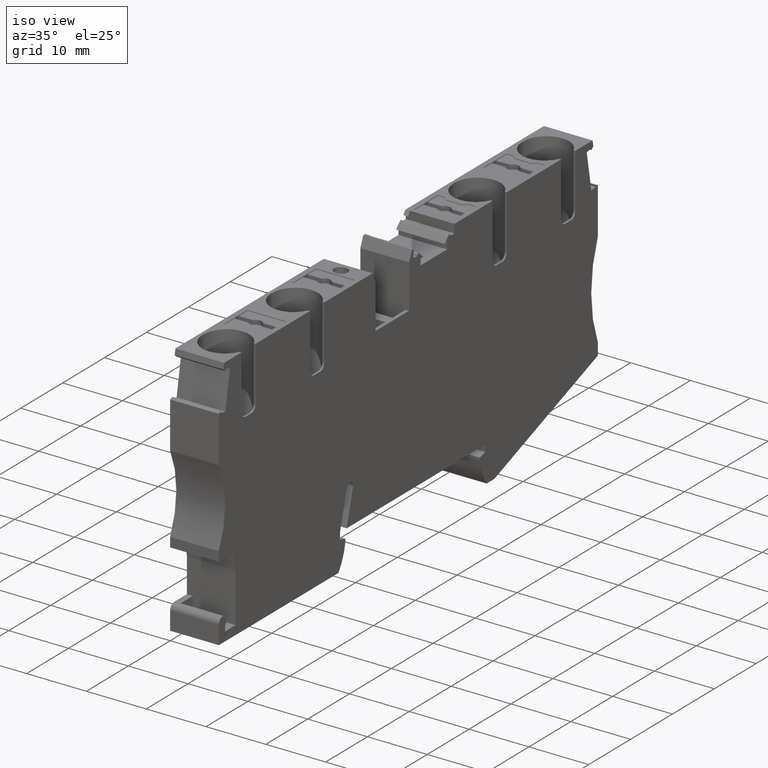
[diagram: clean part render]
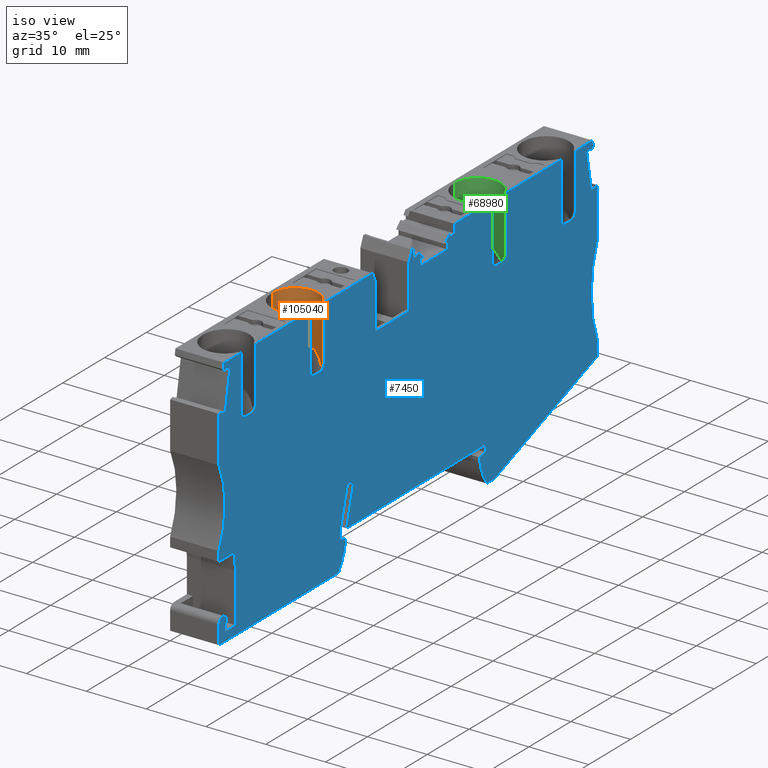
[diagram: same view with three faces highlighted in distinct colors, each labeled with its STEP entity id]
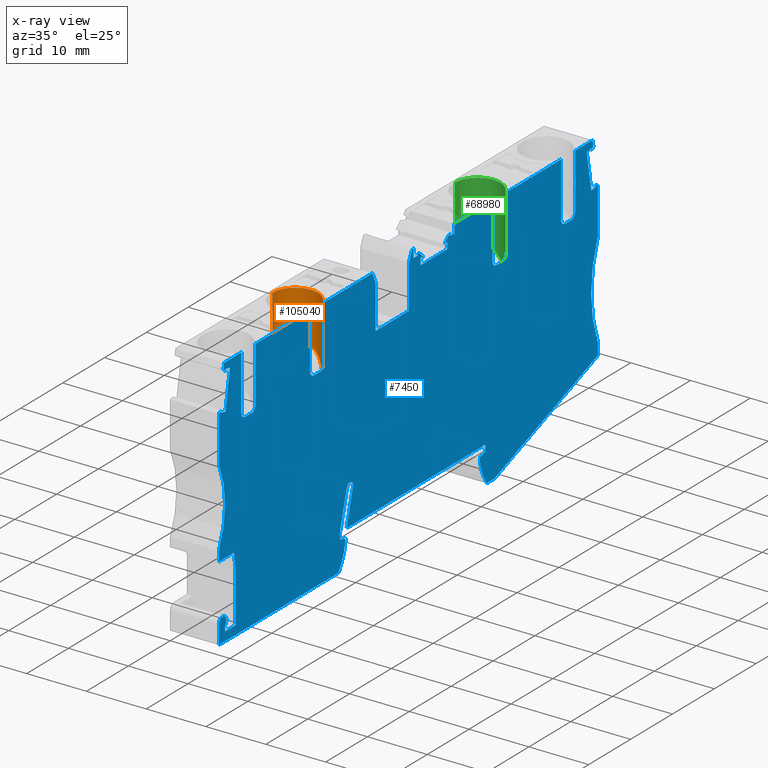
[diagram: x-ray of the same camera — body ghosted, the three highlighted faces saturated]
A machine part, iso view with three faces highlighted in distinct colors.
The next image is the same camera in x-ray (body ghosted, the three faces saturated) — at least one of them is partly hidden behind the body in this view.
Their STEP definitions:

[orange] entity #105040 — the highlighted cylindrical surface (edge-blend (fillet) strip) has radius 3.8 mm, axis along (-0, 0, 1).
#32110=CARTESIAN_POINT('',(-19.3178329684805,-2.19999999291421,
53.3614180490743));
#32120=VERTEX_POINT('',#32110);
#32150=CARTESIAN_POINT('',(-20.8178329685115,-2.19999999291595,
49.8699999990684));
#32160=DIRECTION('',(-1.20206344877901E-10,-1.,3.06483167043375E-11));
#32170=DIRECTION('',(1.,-1.20206344878173E-10,-8.86335069057809E-12));
#32180=AXIS2_PLACEMENT_3D('',#32150,#32160,#32170);
#32190=CIRCLE('',#32180,3.8);
#32200=CARTESIAN_POINT('',(-20.8178329685451,-2.19999999291789,
46.0699999990684));
#32210=VERTEX_POINT('',#32200);
#32220=EDGE_CURVE('',#32210,#32120,#32190,.T.);
#93380=CARTESIAN_POINT('',(-19.3178329695742,-11.29999998327,
53.3614180493532));
#93390=VERTEX_POINT('',#93380);
#93420=CARTESIAN_POINT('',(-19.3178329684805,-2.19999998143232,
53.3614180490743));
#93430=DIRECTION('',(1.20206372633477E-10,1.,-3.06483167043375E-11));
#93440=VECTOR('',#93430,1.);
#93450=LINE('',#93420,#93440);
#93460=EDGE_CURVE('',#93390,#32120,#93450,.T.);
#93690=CARTESIAN_POINT('',(-20.8178329699241,-13.6711439597553,
46.06999999942));
#93700=VERTEX_POINT('',#93690);
#93800=CARTESIAN_POINT('',(-20.8178329685451,-2.19999998147548,
46.0699999990684));
#93810=DIRECTION('',(1.20206372633477E-10,1.,-3.06483167043375E-11));
#93820=VECTOR('',#93810,1.);
#93830=LINE('',#93800,#93820);
#93840=EDGE_CURVE('',#93700,#32210,#93830,.T.);
#94450=CARTESIAN_POINT('',(-20.8178329704545,-18.363753154477,
49.8699999995638));
#94460=DIRECTION('',(-5.01031614456165E-12,-0.629320391073258,
-0.777145961438006));
#94470=DIRECTION('',(-1.50619391796523E-10,-0.777145961438006,
0.629320391073257));
#94480=AXIS2_PLACEMENT_3D('',#94450,#94460,#94470);
#94490=ELLIPSE('',#94480,6.03825977045367,3.8);
#94500=CARTESIAN_POINT('',(-18.949986169816,-14.2771673569121,
46.5607480701984));
#94510=VERTEX_POINT('',#94500);
#94520=EDGE_CURVE('',#93700,#94510,#94490,.T.);
#97170=CARTESIAN_POINT('',(-14.515531876243,1.05615631795786E-8,
60.2138096119149));
#97180=DIRECTION('',(0.265647193334997,0.817577993633953,
0.510879430980267));
#97190=DIRECTION('',(-6.95151413958996E-12,0.529919264207147,
-0.848048096172709));
#97200=AXIS2_PLACEMENT_3D('',#97170,#97180,#97190);
#97210=CYLINDRICAL_SURFACE('',#97200,1.);
#98130=CARTESIAN_POINT('',(-20.8178329685115,-2.19999998135902,
49.8699999990684));
#98140=DIRECTION('',(1.20206344877901E-10,1.,-3.06483167043375E-11));
#98150=DIRECTION('',(1.,-1.20206344877971E-10,-8.8633506905781E-12));
#98160=AXIS2_PLACEMENT_3D('',#98130,#98140,#98150);
#98170=CYLINDRICAL_SURFACE('',#98160,3.8);
#98180=CARTESIAN_POINT('',(-18.6959069310323,-13.3957907391599,
53.0223689317755));
#98190=CARTESIAN_POINT('',(-18.6762123304809,-13.4170061358189,
53.0091120806155));
#98200=CARTESIAN_POINT('',(-18.6559726118617,-13.4373764752573,
52.9952199574348));
#98210=CARTESIAN_POINT('',(-18.6352635258322,-13.4567331413181,
52.980689733514));
#98220=CARTESIAN_POINT('',(-18.6145544461853,-13.4760898014131,
52.9661595140714));
#98230=CARTESIAN_POINT('',(-18.5933772555595,-13.4944319992074,
52.9509919628578));
#98240=CARTESIAN_POINT('',(-18.5718128780172,-13.5116023974665,
52.9351906536753));
#98250=CARTESIAN_POINT('',(-18.5610307231601,-13.5201875695923,
52.9272900239346));
#98260=CARTESIAN_POINT('',(-18.5501519005423,-13.5284798985518,
52.9192311019607));
#98270=CARTESIAN_POINT('',(-18.539186521284,-13.5364606244271,
52.9110146922984));
#98280=CARTESIAN_POINT('',(-18.5282258072751,-13.5444379548816,
52.9028017783291));
#98290=CARTESIAN_POINT('',(-18.5171548844555,-13.5521212393161,
52.8944137402309));
#98300=CARTESIAN_POINT('',(-18.5059836925981,-13.5594871998518,
52.885850280704));
#98310=CARTESIAN_POINT('',(-18.4836423444429,-13.5742184381052,
52.8687241554751));
#98320=CARTESIAN_POINT('',(-18.4609135024019,-13.5876685522468,
52.8509055747057));
#98330=CARTESIAN_POINT('',(-18.4379528145281,-13.5996250067479,
52.8324602010272));
#98340=CARTESIAN_POINT('',(-18.4149850582758,-13.6115851420075,
52.814009148996));
#98350=CARTESIAN_POINT('',(-18.3918210764259,-13.6220369225835,
52.794960656727));
#98360=CARTESIAN_POINT('',(-18.3685233302603,-13.6308369088569,
52.7753196529575));
#98370=CARTESIAN_POINT('',(-18.3568690738844,-13.6352389353622,
52.7654946127248));
#98380=CARTESIAN_POINT('',(-18.3451755896683,-13.639228939666,
52.7555163744883));
#98390=CARTESIAN_POINT('',(-18.3334708975867,-13.642780381559,
52.7454034656678));
#98400=CARTESIAN_POINT('',(-18.321766136712,-13.6463318443251,
52.7352904974098));
#98410=CARTESIAN_POINT('',(-18.3100507161755,-13.6494445966009,
52.7250433284719));
#98420=CARTESIAN_POINT('',(-18.2983513877988,-13.6520964475001,
52.7146814503929));
#98430=CARTESIAN_POINT('',(-18.2866503454194,-13.654748686907,
52.7043180542536));
#98440=CARTESIAN_POINT('',(-18.2749454887026,-13.6569442438826,
52.6938222273084));
#98450=CARTESIAN_POINT('',(-18.2632700660794,-13.6586594630564,
52.683220284161));
#98460=CARTESIAN_POINT('',(-18.2515927013568,-13.6603749675411,
52.6726165774777));
#98470=CARTESIAN_POINT('',(-18.2399536466237,-13.661609343584,
52.6619149528518));
#98480=CARTESIAN_POINT('',(-18.2283606043464,-13.6623465964154,
52.651120792929));
#98490=CARTESIAN_POINT('',(-18.2051612081042,-13.6638219486271,
52.6295200787108));
#98500=CARTESIAN_POINT('',(-18.1821857208734,-13.663300637091,
52.6075835095495));
#98510=CARTESIAN_POINT('',(-18.1595893964946,-13.660674124357,
52.5854633308802));
#98520=CARTESIAN_POINT('',(-18.1369812629948,-13.6580462389746,
52.5633315919297));
#98530=CARTESIAN_POINT('',(-18.1148215709911,-13.6533213460017,
52.5410842363122));
#98540=CARTESIAN_POINT('',(-18.0932055282067,-13.6464418590688,
52.5188498071737));
#98550=CARTESIAN_POINT('',(-18.0824009842223,-13.6430032223165,
52.5077361694929));
#98560=CARTESIAN_POINT('',(-18.0717450957689,-13.6390294779063,
52.4966390777023));
#98570=CARTESIAN_POINT('',(-18.0612731805059,-13.63453144295,
52.4856028223974));
#98580=CARTESIAN_POINT('',(-18.0508034687455,-13.6300343544711,
52.4745688893435));
#98590=CARTESIAN_POINT('',(-18.0405181628648,-13.6250161299391,
52.4635968996268));
#98600=CARTESIAN_POINT('',(-18.030382126225,-13.6194541551275,
52.4526571183937));
#98610=CARTESIAN_POINT('',(-18.0202508518538,-13.6138947935284,
52.441722477057));
#98620=CARTESIAN_POINT('',(-18.010290878643,-13.6078016313153,
52.4308433962264));
#98630=CARTESIAN_POINT('',(-18.0005315688016,-13.6011911561984,
52.4200613350642));
#98640=CARTESIAN_POINT('',(-17.9907723335427,-13.5945807316,
52.4092793563006));
#98650=CARTESIAN_POINT('',(-17.9812145117399,-13.5874534222554,
52.3985952513131));
#98660=CARTESIAN_POINT('',(-17.9718849763714,-13.5798375647847,
52.3880508365343));
#98670=CARTESIAN_POINT('',(-17.9625554523816,-13.5722217166028,
52.377506434616));
#98680=CARTESIAN_POINT('',(-17.9534549008163,-13.5641178953591,
52.3671025460266));
#98690=CARTESIAN_POINT('',(-17.9446053878266,-13.555565148374,
52.3568782155215));
#98700=CARTESIAN_POINT('',(-17.9357558334548,-13.5470123613945,
52.3466538372053));
#98710=CARTESIAN_POINT('',(-17.927157893661,-13.5380113120926,
52.3366097442108));
#98720=CARTESIAN_POINT('',(-17.918827317092,-13.5286094538531,
52.3267796446295));
#98730=CARTESIAN_POINT('',(-17.9104966531447,-13.5192074969987,
52.3169494419415));
#98740=CARTESIAN_POINT('',(-17.9024337936404,-13.5094054202953,
52.3073338203956));
#98750=CARTESIAN_POINT('',(-17.8946473692839,-13.4992558194562,
52.2979592133488));
#98760=CARTESIAN_POINT('',(-17.8868648861785,-13.4891113560364,
52.288589351443));
#98770=CARTESIAN_POINT('',(-17.8793210147565,-13.478571582073,
52.2794151364825));
#98780=CARTESIAN_POINT('',(-17.8720136985662,-13.4676621517677,
52.2704476286771));
#98790=CARTESIAN_POINT('',(-17.8647066042967,-13.456753052778,
52.261480393212));
#98800=CARTESIAN_POINT('',(-17.8576370672684,-13.4454756193696,
52.2527210891862));
#98810=CARTESIAN_POINT('',(-17.8508050661392,-13.4338631948995,
52.2441831049261));
#98820=CARTESIAN_POINT('',(-17.8439730878094,-13.4222508091819,
52.2356451491587));
#98830=CARTESIAN_POINT('',(-17.8373788059062,-13.4103036919721,
52.2273287281937));
#98840=CARTESIAN_POINT('',(-17.8310210551562,-13.398059129177,
52.21924553493));
#98850=CARTESIAN_POINT('',(-17.8246633118697,-13.3858145807563,
52.2111623511555));
#98860=CARTESIAN_POINT('',(-17.8185422266062,-13.3732728561643,
52.2033125729376));
#98870=CARTESIAN_POINT('',(-17.8126550304538,-13.3604743077191,
52.1957053875698));
#98880=CARTESIAN_POINT('',(-17.8067678308647,-13.3476757518027,
52.1880981977614));
#98890=CARTESIAN_POINT('',(-17.8011146133341,-13.33462062817,
52.1807337368692));
#98900=CARTESIAN_POINT('',(-17.7956908327565,-13.3213514027152,
52.173618219341));
#98910=CARTESIAN_POINT('',(-17.7902670413864,-13.308082150857,
52.1665026876541));
#98920=CARTESIAN_POINT('',(-17.7850727502431,-13.2945990261596,
52.1596361958897));
#98930=CARTESIAN_POINT('',(-17.7801016703414,-13.2809456750252,
52.1530218022001));
#98940=CARTESIAN_POINT('',(-17.7751305748367,-13.2672922810363,
52.1464073877495));
#98950=CARTESIAN_POINT('',(-17.7703827302038,-13.2534688562928,
52.1400451342584));
#98960=CARTESIAN_POINT('',(-17.7658502641049,-13.2395193599972,
52.1339349728331));
#98970=B_SPLINE_CURVE_WITH_KNOTS('',3,(#98180,#98190,#98200,#98210,
#98220,#98230,#98240,#98250,#98260,#98270,#98280,#98290,#98300,#98310,
#98320,#98330,#98340,#98350,#98360,#98370,#98380,#98390,#98400,#98410,
#98420,#98430,#98440,#98450,#98460,#98470,#98480,#98490,#98500,#98510,
#98520,#98530,#98540,#98550,#98560,#98570,#98580,#98590,#98600,#98610,
#98620,#98630,#98640,#98650,#98660,#98670,#98680,#98690,#98700,#98710,
#98720,#98730,#98740,#98750,#98760,#98770,#98780,#98790,#98800,#98810,
#98820,#98830,#98840,#98850,#98860,#98870,#98880,#98890,#98900,#98910,
#98920,#98930,#98940,#98950,#98960),.UNSPECIFIED.,.F.,.F.,(4,3,3,3,3,3,3
,3,3,3,3,3,3,3,3,3,3,3,3,3,3,3,3,3,3,3,4),(0.,0.0955684974804052,
0.191025976689558,0.23864174177378,0.286247449304845,0.381626282946914,
0.476853928197918,0.52446595157082,0.57205444494482,0.619638888345117,
0.667214016661135,0.76237848353731,0.857567928476411,0.905189609786605,
0.95281248287288,1.0006457889361,1.04862718019773,1.09664766519407,
1.14458408543877,1.19230949047491,1.23993362330643,1.28771099772939,
1.33562595508848,1.38363256192005,1.43166106815651,1.47962260489098,
1.52741325118031),.UNSPECIFIED.);
#98980=SURFACE_CURVE('',#98970,(#98170,#97210),.CURVE_3D.);
#98990=CARTESIAN_POINT('',(-18.6959069310323,-13.3957907391599,
53.0223689317755));
#99000=VERTEX_POINT('',#98990);
#99010=CARTESIAN_POINT('',(-17.7658502641049,-13.2395193599971,
52.1339349728331));
#99020=VERTEX_POINT('',#99010);
#99030=EDGE_CURVE('',#99000,#99020,#98980,.T.);
#99790=CARTESIAN_POINT('',(-17.9944344928578,-13.9430292777114,
47.3266909266442));
#99800=VERTEX_POINT('',#99790);
#99830=CARTESIAN_POINT('',(-20.8178329709676,-22.6325562927551,
49.8699999996946));
#99840=DIRECTION('',(0.951056516296076,-0.30901699437211,
1.04130327621421E-12));
#99850=DIRECTION('',(-0.30901699437211,-0.951056516296076,
3.18872073057596E-11));
#99860=AXIS2_PLACEMENT_3D('',#99830,#99840,#99850);
#99870=ELLIPSE('',#99860,12.2970583191615,3.8);
#99880=EDGE_CURVE('',#99800,#99020,#99870,.T.);
#100010=CARTESIAN_POINT('',(-14.5155318764524,9.83637127305315E-9,
36.2860854625362));
#100020=DIRECTION('',(-0.244825436045214,-0.753495214003703,
0.610168393428229));
#100030=DIRECTION('',(3.04356993422528E-12,0.629320391073644,
0.777145961437693));
#100040=AXIS2_PLACEMENT_3D('',#100010,#100020,#100030);
#100050=CYLINDRICAL_SURFACE('',#100040,1.);
#100810=CARTESIAN_POINT('',(-17.9944344928578,-13.9430292777114,
47.3266909266442));
#100820=CARTESIAN_POINT('',(-18.0032594168744,-13.9701896010744,
47.3168941318764));
#100830=CARTESIAN_POINT('',(-18.0129507459812,-13.9969307599007,
47.3062370489863));
#100840=CARTESIAN_POINT('',(-18.0235531807496,-14.0229872891889,
47.2947329337149));
#100850=CARTESIAN_POINT('',(-18.0288542170678,-14.0360151088455,
47.2889810725438));
#100860=CARTESIAN_POINT('',(-18.0343823841905,-14.0488711761847,
47.2830183534763));
#100870=CARTESIAN_POINT('',(-18.0401405393416,-14.0615228807854,
47.276850416202));
#100880=CARTESIAN_POINT('',(-18.0458986902805,-14.074174576131,
47.2706824834397));
#100890=CARTESIAN_POINT('',(-18.0518867555595,-14.0866217062328,
47.264309422587));
#100900=CARTESIAN_POINT('',(-18.0581058049151,-14.098833199571,
47.2577392975495));
#100910=CARTESIAN_POINT('',(-18.0643248583472,-14.1110447009138,
47.2511691682052));
#100920=CARTESIAN_POINT('',(-18.0707747989197,-14.12302035518,
47.2444020891156));
#100930=CARTESIAN_POINT('',(-18.0774550377609,-14.1347313584154,
47.237448235691));
#100940=CARTESIAN_POINT('',(-18.0841352919027,-14.1464423884738,
47.2304943663394));
#100950=CARTESIAN_POINT('',(-18.0910457243776,-14.157888562129,
47.2233538589593));
#100960=CARTESIAN_POINT('',(-18.0981844101366,-14.1690440267254,
47.2160384866958));
#100970=CARTESIAN_POINT('',(-18.1053231257954,-14.1801995380455,
47.2087230837923));
#100980=CARTESIAN_POINT('',(-18.1126899557657,-14.1910641564905,
47.2012329674844));
#100990=CARTESIAN_POINT('',(-18.120282195939,-14.2016155496914,
47.1935807830932));
#101000=CARTESIAN_POINT('',(-18.1278701458609,-14.2121609804717,
47.1859329228268));
#101010=CARTESIAN_POINT('',(-18.1356950607119,-14.2224117105528,
47.1781110676802));
#101020=CARTESIAN_POINT('',(-18.1437893262544,-14.2323817792378,
47.1700943359798));
#101030=CARTESIAN_POINT('',(-18.1518803529582,-14.2423478585004,
47.1620808120937));
#101040=CARTESIAN_POINT('',(-18.1602273431895,-14.2520152040908,
47.1538858655157));
#101050=CARTESIAN_POINT('',(-18.1688206461152,-14.2613485414322,
47.1455305633612));
#101060=CARTESIAN_POINT('',(-18.1774139027923,-14.2706818285423,
47.1371753061745));
#101070=CARTESIAN_POINT('',(-18.1862531833399,-14.2796807175941,
47.1286600096856));
#101080=CARTESIAN_POINT('',(-18.1953241439899,-14.2883136959685,
47.1200095525945));
#101090=CARTESIAN_POINT('',(-18.2043950862866,-14.2969466568758,
47.1113591130058));
#101100=CARTESIAN_POINT('',(-18.2136973633265,-14.3052133444504,
47.1025738743718));
#101110=CARTESIAN_POINT('',(-18.2232125714713,-14.3130875491093,
47.093681395996));
#101120=CARTESIAN_POINT('',(-18.2327277925945,-14.3209617645082,
47.0847889054911));
#101130=CARTESIAN_POINT('',(-18.2424555575143,-14.3284431843058,
47.0757895628002));
#101140=CARTESIAN_POINT('',(-18.2523743801765,-14.3355119693666,
47.0667122467907));
#101150=CARTESIAN_POINT('',(-18.2622932519919,-14.3425807894571,
47.057634885798));
#101160=CARTESIAN_POINT('',(-18.2724027724101,-14.3492367315861,
47.0484799417007));
#101170=CARTESIAN_POINT('',(-18.282679716035,-14.35546687533,
47.039276067464));
#101180=CARTESIAN_POINT('',(-18.2929570847891,-14.3616972767979,
47.0300718124881));
#101190=CARTESIAN_POINT('',(-18.3033999844478,-14.3675009262072,
47.0208203039329));
#101200=CARTESIAN_POINT('',(-18.313989433383,-14.3728739959455,
47.0115445521295));
#101210=CARTESIAN_POINT('',(-18.324583943383,-14.3782496336601,
47.0022643671226));
#101220=CARTESIAN_POINT('',(-18.3353629570223,-14.3832132299648,
46.9929268323005));
#101230=CARTESIAN_POINT('',(-18.3463014198663,-14.3877528650404,
46.9835607056389));
#101240=CARTESIAN_POINT('',(-18.357239866812,-14.392292493518,
46.9741945925903));
#101250=CARTESIAN_POINT('',(-18.3683373533484,-14.3964079905899,
46.9648002573943));
#101260=CARTESIAN_POINT('',(-18.3795658792329,-14.4000932576924,
46.95540678697));
#101270=CARTESIAN_POINT('',(-18.4020261324856,-14.4074648426429,
46.9366171678497));
#101280=CARTESIAN_POINT('',(-18.4249732754198,-14.413107442773,
46.917862085181));
#101290=CARTESIAN_POINT('',(-18.4483719464506,-14.4170643743495,
46.8991996934689));
#101300=CARTESIAN_POINT('',(-18.4717679539381,-14.4210208554963,
46.8805394261548));
#101310=CARTESIAN_POINT('',(-18.4955132695164,-14.4232735273116,
46.862053667027));
#101320=CARTESIAN_POINT('',(-18.5195356831487,-14.4238844770498,
46.8438093938566));
#101330=CARTESIAN_POINT('',(-18.5435611447783,-14.4244955043061,
46.8255628058273));
#101340=CARTESIAN_POINT('',(-18.5677938597927,-14.4234626347744,
46.8076108150779));
#101350=CARTESIAN_POINT('',(-18.5921570285098,-14.4208631068315,
46.790005420948));
#101360=CARTESIAN_POINT('',(-18.6165222265001,-14.4182633623669,
46.7723985604178));
#101370=CARTESIAN_POINT('',(-18.6409484962667,-14.4141050770484,
46.7551881156568));
#101380=CARTESIAN_POINT('',(-18.6653827211275,-14.4084705963153,
46.7383937141285));
#101390=CARTESIAN_POINT('',(-18.6898186440867,-14.4028357240041,
46.7215981454444));
#101400=CARTESIAN_POINT('',(-18.714202219642,-14.3957360466688,
46.7052606259079));
#101410=CARTESIAN_POINT('',(-18.7384264502411,-14.3872786980257,
46.6894232395316));
#101420=CARTESIAN_POINT('',(-18.7626647248708,-14.3788164462232,
46.673576671409));
#101430=CARTESIAN_POINT('',(-18.7867896949729,-14.368976890745,
46.6582009708599));
#101440=CARTESIAN_POINT('',(-18.8106525155664,-14.3578823401088,
46.6433567555359));
#101450=CARTESIAN_POINT('',(-18.8345186671867,-14.3467862407771,
46.6285104680982));
#101460=CARTESIAN_POINT('',(-18.8581048878991,-14.334444448782,
46.6142062253615));
#101470=CARTESIAN_POINT('',(-18.8813079867276,-14.3209844071735,
46.6004631837298));
#101480=CARTESIAN_POINT('',(-18.9045297058902,-14.3075135639702,
46.5867091133977));
#101490=CARTESIAN_POINT('',(-18.9274558705072,-14.2928713167221,
46.5734648860894));
#101500=CARTESIAN_POINT('',(-18.94998616984,-14.2771673569462,
46.5607480701989));
#101510=B_SPLINE_CURVE_WITH_KNOTS('',3,(#100810,#100820,#100830,#100840,
#100850,#100860,#100870,#100880,#100890,#100900,#100910,#100920,#100930,
#100940,#100950,#100960,#100970,#100980,#100990,#101000,#101010,#101020,
#101030,#101040,#101050,#101060,#101070,#101080,#101090,#101100,#101110,
#101120,#101130,#101140,#101150,#101160,#101170,#101180,#101190,#101200,
#101210,#101220,#101230,#101240,#101250,#101260,#101270,#101280,#101290,
#101300,#101310,#101320,#101330,#101340,#101350,#101360,#101370,#101380,
#101390,#101400,#101410,#101420,#101430,#101440,#101450,#101460,#101470,
#101480,#101490,#101500),.UNSPECIFIED.,.F.,.F.,(4,3,3,3,3,3,3,3,3,3,3,3,
3,3,3,3,3,3,3,3,3,3,3,4),(0.,0.0909282286546265,0.136538637691248,
0.182150824146632,0.227705793204771,0.273158290184004,0.318480208099251,
0.363771467758649,0.409264258849813,0.454887509009071,0.500552638697975,
0.54617319029863,0.591670326944103,0.636980014548129,0.682247653941485,
0.727547367937317,0.818051174877553,0.908537033576664,0.999013427461584,
1.08949406881755,1.17998875859372,1.27059191676324,1.36113993847218,
1.45179763708194),.UNSPECIFIED.);
#101520=SURFACE_CURVE('',#101510,(#98170,#100050),.CURVE_3D.);
#101530=EDGE_CURVE('',#99800,#94510,#101520,.T.);
#101890=CARTESIAN_POINT('',(-20.8178329704637,-18.440635590016,
49.8699999995662));
#101900=DIRECTION('',(9.09774177964337E-12,-0.529919264207648,
0.848048096172396));
#101910=DIRECTION('',(1.47429610713167E-10,0.848048096172396,
0.529919264207648));
#101920=AXIS2_PLACEMENT_3D('',#101890,#101900,#101910);
#101930=ELLIPSE('',#101920,7.17090367623358,3.8);
#101940=CARTESIAN_POINT('',(-19.3178329697609,-12.853198729148,
53.3614180494008));
#101950=VERTEX_POINT('',#101940);
#101960=EDGE_CURVE('',#99000,#101950,#101930,.T.);
#103360=CARTESIAN_POINT('',(-19.3178329684804,-2.19999998143232,
53.3614180490743));
#103370=DIRECTION('',(1.20206372633477E-10,1.,-3.06483167043375E-11));
#103380=VECTOR('',#103370,1.);
#103390=LINE('',#103360,#103380);
#103400=EDGE_CURVE('',#101950,#93390,#103390,.T.);
#104930=ORIENTED_EDGE('',*,*,#93460,.T.);
#104940=ORIENTED_EDGE('',*,*,#103400,.T.);
#104950=ORIENTED_EDGE('',*,*,#101960,.T.);
#104960=ORIENTED_EDGE('',*,*,#99030,.F.);
#104970=ORIENTED_EDGE('',*,*,#99880,.T.);
#104980=ORIENTED_EDGE('',*,*,#101530,.F.);
#104990=ORIENTED_EDGE('',*,*,#94520,.T.);
#105000=ORIENTED_EDGE('',*,*,#93840,.F.);
#105010=ORIENTED_EDGE('',*,*,#32220,.F.);
#105020=EDGE_LOOP('',(#105010,#105000,#104990,#104980,#104970,#104960,
#104950,#104940,#104930));
#105030=FACE_OUTER_BOUND('',#105020,.T.);
#105040=ADVANCED_FACE('',(#105030),#98170,.F.);

[blue] entity #7450 — the highlighted planar face has unit normal (1, 0, 0).
#10=CARTESIAN_POINT('',(-15.6932565889467,-40.8741306797898,
53.669999999752));
#20=DIRECTION('',(2.71468618527214E-12,5.12067753800213E-13,1.));
#30=DIRECTION('',(1.,3.82333054096922E-14,-2.71468618527216E-12));
#40=AXIS2_PLACEMENT_3D('',#10,#20,#30);
#50=PLANE('',#40);
#60=CARTESIAN_POINT('',(20.8571672243168,8.47251158120348E-10,
53.6699999996318));
#70=DIRECTION('',(3.66685598545768E-10,-1.,5.12067752804815E-13));
#80=VECTOR('',#70,1.);
#90=LINE('',#60,#80);
#100=CARTESIAN_POINT('',(20.8571672251235,-2.19999999152153,
53.669999999633));
#110=VERTEX_POINT('',#100);
#120=CARTESIAN_POINT('',(20.8571672284604,-11.2999999846011,
53.6699999996376));
#130=VERTEX_POINT('',#120);
#140=EDGE_CURVE('',#110,#130,#90,.T.);
#150=ORIENTED_EDGE('',*,*,#140,.F.);
#160=CARTESIAN_POINT('',(21.8571672284604,-11.2999999842344,
53.6699999996349));
#170=DIRECTION('',(2.02357539688872E-10,3.013624899931E-11,1.));
#180=DIRECTION('',(-1.,-2.43495418272843E-10,2.0235753969621E-10));
#190=AXIS2_PLACEMENT_3D('',#160,#170,#180);
#200=CIRCLE('',#190,1.);
#210=CARTESIAN_POINT('',(21.8571672288271,-12.2999999842344,
53.6699999996354));
#220=VERTEX_POINT('',#210);
#230=EDGE_CURVE('',#130,#220,#200,.T.);
#240=ORIENTED_EDGE('',*,*,#230,.F.);
#250=CARTESIAN_POINT('',(1.85870784653934E-11,-12.2999999922491,
53.6699999996947));
#260=DIRECTION('',(-1.,-3.66685598557813E-10,2.71468618545991E-12));
#270=VECTOR('',#260,1.);
#280=LINE('',#250,#270);
#290=CARTESIAN_POINT('',(23.2571672288272,-12.299999983721,
53.6699999996612));
#300=VERTEX_POINT('',#290);
#310=EDGE_CURVE('',#300,#220,#280,.T.);
#320=ORIENTED_EDGE('',*,*,#310,.T.);
#330=CARTESIAN_POINT('',(23.2571672284604,-11.299999983721,
53.6699999996311));
#340=DIRECTION('',(-2.02357539688872E-10,-3.013624899931E-11,-1.));
#350=DIRECTION('',(1.,2.43495418272843E-10,-2.0235753969621E-10));
#360=AXIS2_PLACEMENT_3D('',#330,#340,#350);
#370=CIRCLE('',#360,1.);
#380=CARTESIAN_POINT('',(24.2571672284604,-11.2999999833544,
53.6699999994287));
#390=VERTEX_POINT('',#380);
#400=EDGE_CURVE('',#390,#300,#370,.T.);
#410=ORIENTED_EDGE('',*,*,#400,.T.);
#420=CARTESIAN_POINT('',(24.2571672243168,8.47251158120348E-10,
53.6699999996226));
#430=DIRECTION('',(-3.66685598545768E-10,1.,-5.12067752804815E-13));
#440=VECTOR('',#430,1.);
#450=LINE('',#420,#440);
#460=CARTESIAN_POINT('',(24.2571672251236,-2.19999999068339,
53.6699999996237));
#470=VERTEX_POINT('',#460);
#480=EDGE_CURVE('',#390,#470,#450,.T.);
#490=ORIENTED_EDGE('',*,*,#480,.F.);
#500=CARTESIAN_POINT('',(1.85870784653817E-11,-2.19999999666308,
53.6699999996896));
#510=DIRECTION('',(-1.,-2.4651194974206E-10,2.71468618539839E-12));
#520=VECTOR('',#510,1.);
#530=LINE('',#500,#520);
#540=CARTESIAN_POINT('',(37.2571672283083,-2.19999998747874,
53.6699999995884));
#550=VERTEX_POINT('',#540);
#560=EDGE_CURVE('',#550,#470,#530,.T.);
#570=ORIENTED_EDGE('',*,*,#560,.T.);
#580=CARTESIAN_POINT('',(37.2571672275016,8.47251158120348E-10,
53.6699999995873));
#590=DIRECTION('',(3.66685598545768E-10,-1.,5.12067752804815E-13));
#600=VECTOR('',#590,1.);
#610=LINE('',#580,#600);
#620=CARTESIAN_POINT('',(37.2571672316451,-11.2999999805583,
53.6699999995931));
#630=VERTEX_POINT('',#620);
#640=EDGE_CURVE('',#550,#630,#610,.T.);
#650=ORIENTED_EDGE('',*,*,#640,.F.);
#660=CARTESIAN_POINT('',(38.2571672316451,-11.2999999801916,
53.6699999995904));
#670=DIRECTION('',(2.02357539688872E-10,3.013624899931E-11,1.));
#680=DIRECTION('',(-1.,-2.43495418272843E-10,2.0235753969621E-10));
#690=AXIS2_PLACEMENT_3D('',#660,#670,#680);
#700=CIRCLE('',#690,1.);
#710=CARTESIAN_POINT('',(38.2571672320119,-12.2999999801916,
53.6699999995909));
#720=VERTEX_POINT('',#710);
#730=EDGE_CURVE('',#630,#720,#700,.T.);
#740=ORIENTED_EDGE('',*,*,#730,.F.);
#750=CARTESIAN_POINT('',(1.85870784653934E-11,-12.29999999422,
53.6699999996947));
#760=DIRECTION('',(-1.,-3.66685598557813E-10,2.71468618545991E-12));
#770=VECTOR('',#760,1.);
#780=LINE('',#750,#770);
#790=CARTESIAN_POINT('',(39.6571672320119,-12.2999999796783,
53.6699999996167));
#800=VERTEX_POINT('',#790);
#810=EDGE_CURVE('',#800,#720,#780,.T.);
#820=ORIENTED_EDGE('',*,*,#810,.T.);
#830=CARTESIAN_POINT('',(39.6571672316451,-11.2999999796783,
53.6699999995866));
#840=DIRECTION('',(-2.02357539688872E-10,-3.013624899931E-11,-1.));
#850=DIRECTION('',(1.,2.43495418272843E-10,-2.0235753969621E-10));
#860=AXIS2_PLACEMENT_3D('',#830,#840,#850);
#870=CIRCLE('',#860,1.);
#880=CARTESIAN_POINT('',(40.6571672316451,-11.2999999793116,
53.6699999993842));
#890=VERTEX_POINT('',#880);
#900=EDGE_CURVE('',#890,#800,#870,.T.);
#910=ORIENTED_EDGE('',*,*,#900,.T.);
#920=CARTESIAN_POINT('',(40.6571672275016,8.47251158120348E-10,
53.6699999995781));
#930=DIRECTION('',(-3.66685598545768E-10,1.,-5.12067752804815E-13));
#940=VECTOR('',#930,1.);
#950=LINE('',#920,#940);
#960=CARTESIAN_POINT('',(40.6571672283083,-2.1999999866406,
53.6699999995792));
#970=VERTEX_POINT('',#960);
#980=EDGE_CURVE('',#890,#970,#950,.T.);
#990=ORIENTED_EDGE('',*,*,#980,.F.);
#1000=CARTESIAN_POINT('',(1.85870784653817E-11,-2.19999999666308,
53.6699999996896));
#1010=DIRECTION('',(-1.,-2.4651194974206E-10,2.71468618539839E-12));
#1020=VECTOR('',#1010,1.);
#1030=LINE('',#1000,#1020);
#1040=CARTESIAN_POINT('',(44.7755635933701,-2.19999998562535,
53.669999999568));
#1050=VERTEX_POINT('',#1040);
#1060=EDGE_CURVE('',#1050,#970,#1030,.T.);
#1070=ORIENTED_EDGE('',*,*,#1060,.T.);
#1080=CARTESIAN_POINT('',(44.3876442381874,8.47521164359937E-10,
53.6699999995679));
#1090=DIRECTION('',(0.173648177670928,-0.984807753011503,
3.2887984988684E-14));
#1100=VECTOR('',#1090,1.);
#1110=LINE('',#1080,#1100);
#1120=CARTESIAN_POINT('',(44.9441232240518,-3.15594915460925,
53.669999999568));
#1130=VERTEX_POINT('',#1120);
#1140=EDGE_CURVE('',#1050,#1130,#1110,.T.);
#1150=ORIENTED_EDGE('',*,*,#1140,.F.);
#1160=CARTESIAN_POINT('',(1.87931358587972E-11,-40.8685463756569,
53.6699999997094));
#1170=DIRECTION('',(0.766044443117507,0.642787609688293,
-2.40872107449928E-12));
#1180=VECTOR('',#1170,1.);
#1190=LINE('',#1160,#1180);
#1200=CARTESIAN_POINT('',(44.4808800357618,-3.54465634305059,
53.6699999995695));
#1210=VERTEX_POINT('',#1200);
#1220=EDGE_CURVE('',#1210,#1130,#1190,.T.);
#1230=ORIENTED_EDGE('',*,*,#1220,.T.);
#1240=CARTESIAN_POINT('',(43.8558614849821,8.47514058932579E-10,
53.6699999995694));
#1250=DIRECTION('',(-0.1736481776699,0.984807753011685,
-3.28879849915677E-14));
#1260=VECTOR('',#1250,1.);
#1270=LINE('',#1240,#1260);
#1280=CARTESIAN_POINT('',(44.4335943135861,-3.27648568655287,
53.6699999995695));
#1290=VERTEX_POINT('',#1280);
#1300=EDGE_CURVE('',#1210,#1290,#1270,.T.);
#1310=ORIENTED_EDGE('',*,*,#1300,.F.);
#1320=CARTESIAN_POINT('',(1.86279346726983E-11,-11.1113272140498,
53.6699999996941));
#1330=DIRECTION('',(-0.984807753011599,-0.173648177670386,
2.76236363454066E-12));
#1340=VECTOR('',#1330,1.);
#1350=LINE('',#1320,#1340);
#1360=CARTESIAN_POINT('',(43.3798500182716,-3.46228923658824,
53.6699999995725));
#1370=VERTEX_POINT('',#1360);
#1380=EDGE_CURVE('',#1290,#1370,#1350,.T.);
#1390=ORIENTED_EDGE('',*,*,#1380,.F.);
#1400=CARTESIAN_POINT('',(42.7693550106947,8.47514058932579E-10,
53.6699999995723));
#1410=DIRECTION('',(-0.17364817766705,0.984807753012187,
-3.28879849995626E-14));
#1420=VECTOR('',#1410,1.);
#1430=LINE('',#1400,#1420);
#1440=CARTESIAN_POINT('',(44.4781747420157,-9.6911982743907,
53.6699999995727));
#1450=VERTEX_POINT('',#1440);
#1460=EDGE_CURVE('',#1450,#1370,#1430,.T.);
#1470=ORIENTED_EDGE('',*,*,#1460,.T.);
#1480=CARTESIAN_POINT('',(1.86652381663332E-11,-17.533900534261,
53.6699999996974));
#1490=DIRECTION('',(-0.984807753011487,-0.17364817767102,
2.76236363454069E-12));
#1500=VECTOR('',#1490,1.);
#1510=LINE('',#1480,#1500);
#1520=CARTESIAN_POINT('',(45.5319190373532,-9.50539472435058,
53.6699999995697));
#1530=VERTEX_POINT('',#1520);
#1540=EDGE_CURVE('',#1530,#1450,#1510,.T.);
#1550=ORIENTED_EDGE('',*,*,#1540,.T.);
#1560=CARTESIAN_POINT('',(43.8558614849713,8.47514058932579E-10,
53.6699999995694));
#1570=DIRECTION('',(0.173648177671505,-0.984807753011401,
3.28879849870645E-14));
#1580=VECTOR('',#1570,1.);
#1590=LINE('',#1560,#1580);
#1600=CARTESIAN_POINT('',(45.4846333151771,-9.23722406785286,
53.6699999995697));
#1610=VERTEX_POINT('',#1600);
#1620=EDGE_CURVE('',#1610,#1530,#1590,.T.);
#1630=ORIENTED_EDGE('',*,*,#1620,.T.);
#1640=CARTESIAN_POINT('',(1.85266823328309E-11,7.317828575101,
53.6699999996847));
#1650=DIRECTION('',(0.939692620787746,-0.342020143320621,
-2.37583308951005E-12));
#1660=VECTOR('',#1650,1.);
#1670=LINE('',#1640,#1660);
#1680=CARTESIAN_POINT('',(46.0321672306335,-9.43651011532691,
53.6699999995683));
#1690=VERTEX_POINT('',#1680);
#1700=EDGE_CURVE('',#1610,#1690,#1670,.T.);
#1710=ORIENTED_EDGE('',*,*,#1700,.F.);
#1720=CARTESIAN_POINT('',(46.0321672305993,8.47528269787295E-10,
53.6699999995635));
#1730=DIRECTION('',(-3.62711006380918E-12,1.,-5.12067753790366E-13));
#1740=VECTOR('',#1730,1.);
#1750=LINE('',#1720,#1740);
#1760=CARTESIAN_POINT('',(46.0321672306617,-17.1999999987298,
53.6699999995723));
#1770=VERTEX_POINT('',#1760);
#1780=EDGE_CURVE('',#1770,#1690,#1750,.T.);
#1790=ORIENTED_EDGE('',*,*,#1780,.T.);
#1800=CARTESIAN_POINT('',(65.4486550695463,-25.1999999988827,
53.6699999995237));
#1810=DIRECTION('',(2.71468618527214E-12,5.12067753800213E-13,1.));
#1820=DIRECTION('',(-5.5372373364854E-15,1.,-5.12067753800198E-13));
#1830=AXIS2_PLACEMENT_3D('',#1800,#1810,#1820);
#1840=CIRCLE('',#1830,21.);
#1850=CARTESIAN_POINT('',(46.0321672309034,-33.1999999996222,
53.6699999995805));
#1860=VERTEX_POINT('',#1850);
#1870=EDGE_CURVE('',#1770,#1860,#1840,.T.);
#1880=ORIENTED_EDGE('',*,*,#1870,.F.);
#1890=CARTESIAN_POINT('',(46.0321672303943,8.47528269787295E-10,
53.6699999995635));
#1900=DIRECTION('',(1.53350855587787E-11,-1.,5.12067753758583E-13));
#1910=VECTOR('',#1900,1.);
#1920=LINE('',#1890,#1910);
#1930=CARTESIAN_POINT('',(46.0321672309341,-35.1999999922851,
53.6699999995815));
#1940=VERTEX_POINT('',#1930);
#1950=EDGE_CURVE('',#1860,#1940,#1920,.T.);
#1960=ORIENTED_EDGE('',*,*,#1950,.F.);
#1970=CARTESIAN_POINT('',(1.88553083481896E-11,-52.317744261007,
53.6699999997152));
#1980=DIRECTION('',(-0.937291736634536,-0.348545836923376,
2.72293201282128E-12));
#1990=VECTOR('',#1980,1.);
#2000=LINE('',#1970,#1990);
#2010=CARTESIAN_POINT('',(21.2919951507491,-44.3999999989839,
53.6699999996534));
#2020=VERTEX_POINT('',#2010);
#2030=EDGE_CURVE('',#1940,#2020,#2000,.T.);
#2040=ORIENTED_EDGE('',*,*,#2030,.F.);
#2050=CARTESIAN_POINT('',(1.88126757840348E-11,-44.4000000055154,
53.6699999997112));
#2060=DIRECTION('',(-1.,-3.06759382291651E-10,2.71468618542923E-12));
#2070=VECTOR('',#2060,1.);
#2080=LINE('',#2050,#2070);
#2090=CARTESIAN_POINT('',(19.4911108751004,-44.3999999995384,
53.6699999996583));
#2100=VERTEX_POINT('',#2090);
#2110=EDGE_CURVE('',#2020,#2100,#2080,.T.);
#2120=ORIENTED_EDGE('',*,*,#2110,.F.);
#2130=CARTESIAN_POINT('',(27.2261399010701,-38.8846282108566,
53.6699999996344));
#2140=DIRECTION('',(-2.71468618527214E-12,-5.12067753800213E-13,-1.));
#2150=DIRECTION('',(-1.,2.22641791002337E-25,2.71468618527214E-12));
#2160=AXIS2_PLACEMENT_3D('',#2130,#2140,#2150);
#2170=CIRCLE('',#2160,9.499999999999);
#2180=CARTESIAN_POINT('',(17.8321672216936,-40.2999999991548,
53.6699999996607));
#2190=VERTEX_POINT('',#2180);
#2200=EDGE_CURVE('',#2100,#2190,#2170,.T.);
#2210=ORIENTED_EDGE('',*,*,#2200,.F.);
#2220=CARTESIAN_POINT('',(17.8321672217215,8.47371950385427E-10,
53.66999999964));
#2230=DIRECTION('',(6.90225654408292E-13,1.,-5.12067753802086E-13));
#2240=VECTOR('',#2230,1.);
#2250=LINE('',#2220,#2240);
#2260=CARTESIAN_POINT('',(17.832167221694,-39.8483339493145,
53.6699999996604));
#2270=VERTEX_POINT('',#2260);
#2280=EDGE_CURVE('',#2190,#2270,#2250,.T.);
#2290=ORIENTED_EDGE('',*,*,#2280,.F.);
#2300=CARTESIAN_POINT('',(1.88144521408744E-11,-44.6264487556578,
53.6699999997113));
#2310=DIRECTION('',(0.965925826289086,0.258819045102457,
-2.75471838369089E-12));
#2320=VECTOR('',#2310,1.);
#2330=LINE('',#2300,#2320);
#2340=CARTESIAN_POINT('',(19.1321672216942,-39.4999999991541,
53.6699999996567));
#2350=VERTEX_POINT('',#2340);
#2360=EDGE_CURVE('',#2270,#2350,#2330,.T.);
#2370=ORIENTED_EDGE('',*,*,#2360,.F.);
#2380=CARTESIAN_POINT('',(19.1321672216941,8.47379055812785E-10,
53.6699999996365));
#2390=DIRECTION('',(-1.16743446477567E-24,1.,-5.12067753800213E-13));
#2400=VECTOR('',#2390,1.);
#2410=LINE('',#2380,#2400);
#2420=CARTESIAN_POINT('',(19.1321672216941,-38.3999999991542,
53.6699999996562));
#2430=VERTEX_POINT('',#2420);
#2440=EDGE_CURVE('',#2350,#2430,#2410,.T.);
#2450=ORIENTED_EDGE('',*,*,#2440,.F.);
#2460=CARTESIAN_POINT('',(1.87807013609185E-11,-38.3999999991542,
53.6699999997081));
#2470=DIRECTION('',(-1.,0.,2.71468618527214E-12));
#2480=VECTOR('',#2470,1.);
#2490=LINE('',#2460,#2480);
#2500=CARTESIAN_POINT('',(-13.9678327783064,-38.3999999991542,
53.669999999746));
#2510=VERTEX_POINT('',#2500);
#2520=EDGE_CURVE('',#2430,#2510,#2490,.T.);
#2530=ORIENTED_EDGE('',*,*,#2520,.F.);
#2540=CARTESIAN_POINT('',(-3.67858378893073,8.47258263547706E-10,
53.6699999996984));
#2550=DIRECTION('',(0.258819045102995,0.965925826288941,
-1.19723195443182E-12));
#2560=VECTOR('',#2550,1.);
#2570=LINE('',#2540,#2560);
#2580=CARTESIAN_POINT('',(-12.4395449513712,-32.6963521804452,
53.669999999739));
#2590=VERTEX_POINT('',#2580);
#2600=EDGE_CURVE('',#2510,#2590,#2570,.T.);
#2610=ORIENTED_EDGE('',*,*,#2600,.F.);
#2620=CARTESIAN_POINT('',(-13.1156930297732,-32.5151788488714,
53.6699999997407));
#2630=DIRECTION('',(2.71468618527214E-12,5.12067753800213E-13,1.));
#2640=DIRECTION('',(1.,-2.22641791002337E-25,-2.71468618527214E-12));
#2650=AXIS2_PLACEMENT_3D('',#2620,#2630,#2640);
#2660=CIRCLE('',#2650,0.700000000000186);
#2670=CARTESIAN_POINT('',(-12.9558416624919,-31.8336749674601,
53.6699999997399));
#2680=VERTEX_POINT('',#2670);
#2690=EDGE_CURVE('',#2590,#2680,#2660,.T.);
#2700=ORIENTED_EDGE('',*,*,#2690,.F.);
#2710=CARTESIAN_POINT('',(-13.1855065178771,-32.5999999991542,
53.6699999997409));
#2720=DIRECTION('',(2.71468618527214E-12,5.12067753800213E-13,1.));
#2730=DIRECTION('',(1.,-2.22641791002337E-25,-2.71468618527214E-12));
#2740=AXIS2_PLACEMENT_3D('',#2710,#2720,#2730);
#2750=CIRCLE('',#2740,0.799999999999994);
#2760=CARTESIAN_POINT('',(-13.9582471789083,-32.3929447630717,
53.6699999997429));
#2770=VERTEX_POINT('',#2760);
#2780=EDGE_CURVE('',#2680,#2770,#2750,.T.);
#2790=ORIENTED_EDGE('',*,*,#2780,.F.);
#2800=CARTESIAN_POINT('',(-5.27858378892773,8.47244052692991E-10,
53.6699999997028));
#2810=DIRECTION('',(0.258819045103168,0.965925826288895,
-1.19723195443227E-12));
#2820=VECTOR('',#2810,1.);
#2830=LINE('',#2800,#2820);
#2840=CARTESIAN_POINT('',(-15.567832778305,-38.3999999991354,
53.6699999997504));
#2850=VERTEX_POINT('',#2840);
#2860=EDGE_CURVE('',#2850,#2770,#2830,.T.);
#2870=ORIENTED_EDGE('',*,*,#2860,.T.);
#2880=CARTESIAN_POINT('',(-15.5678327783056,8.4718720927413E-10,
53.6699999997307));
#2890=DIRECTION('',(1.16743446477567E-24,-1.,5.12067753800213E-13));
#2900=VECTOR('',#2890,1.);
#2910=LINE('',#2880,#2900);
#2920=CARTESIAN_POINT('',(-15.5678327783058,-39.499999999154,
53.6699999997509));
#2930=VERTEX_POINT('',#2920);
#2940=EDGE_CURVE('',#2850,#2930,#2910,.T.);
#2950=ORIENTED_EDGE('',*,*,#2940,.F.);
#2960=CARTESIAN_POINT('',(1.88091230703551E-11,-43.6713882200107,
53.6699999997108));
#2970=DIRECTION('',(0.96592582628904,-0.258819045102626,
-2.48965260955802E-12));
#2980=VECTOR('',#2970,1.);
#2990=LINE('',#2960,#2980);
#3000=CARTESIAN_POINT('',(-14.2678327783064,-39.8483339493145,
53.6699999997476));
#3010=VERTEX_POINT('',#3000);
#3020=EDGE_CURVE('',#2930,#3010,#2990,.T.);
#3030=ORIENTED_EDGE('',*,*,#3020,.F.);
#3040=CARTESIAN_POINT('',(-14.2678327783063,8.47194314701487E-10,
53.6699999997272));
#3050=DIRECTION('',(1.16743446477567E-24,-1.,5.12067753800213E-13));
#3060=VECTOR('',#3050,1.);
#3070=LINE('',#3040,#3060);
#3080=CARTESIAN_POINT('',(-14.2678327783064,-40.2999999991569,
53.6699999997478));
#3090=VERTEX_POINT('',#3080);
#3100=EDGE_CURVE('',#3010,#3090,#3070,.T.);
#3110=ORIENTED_EDGE('',*,*,#3100,.F.);
#3120=CARTESIAN_POINT('',(-23.6618054576824,-38.8846282108566,
53.6699999997726));
#3130=DIRECTION('',(2.71468618527214E-12,5.12067753800213E-13,1.));
#3140=DIRECTION('',(1.,-2.22641791002337E-25,-2.71468618527214E-12));
#3150=AXIS2_PLACEMENT_3D('',#3120,#3130,#3140);
#3160=CIRCLE('',#3150,9.499999999999);
#3170=CARTESIAN_POINT('',(-15.9267764349393,-44.4000000040636,
53.6699999997544));
#3180=VERTEX_POINT('',#3170);
#3190=EDGE_CURVE('',#3180,#3090,#3160,.T.);
#3200=ORIENTED_EDGE('',*,*,#3190,.T.);
#3210=CARTESIAN_POINT('',(1.88126757840348E-11,-44.400000004063,
53.6699999997112));
#3220=DIRECTION('',(-1.,-3.82333054095721E-14,2.71468618527216E-12));
#3230=VECTOR('',#3220,1.);
#3240=LINE('',#3210,#3230);
#3250=CARTESIAN_POINT('',(-44.4928327779468,-44.4000000040647,
53.669999999832));
#3260=VERTEX_POINT('',#3250);
#3270=EDGE_CURVE('',#3180,#3260,#3240,.T.);
#3280=ORIENTED_EDGE('',*,*,#3270,.F.);
#3290=CARTESIAN_POINT('',(-44.4928327823957,8.47030889872263E-10,
53.6699999998092));
#3300=DIRECTION('',(-1.00200833741411E-10,1.,-5.12067753528199E-13));
#3310=VECTOR('',#3300,1.);
#3320=LINE('',#3290,#3310);
#3330=CARTESIAN_POINT('',(-44.4928327782568,-41.2999999988615,
53.6699999998304));
#3340=VERTEX_POINT('',#3330);
#3350=EDGE_CURVE('',#3260,#3340,#3320,.T.);
#3360=ORIENTED_EDGE('',*,*,#3350,.F.);
#3370=CARTESIAN_POINT('',(-43.5928327782569,-41.2999999987714,
53.6699999998279));
#3380=DIRECTION('',(2.71468618527214E-12,5.12067753800213E-13,1.));
#3390=DIRECTION('',(-5.5372373364854E-15,1.,-5.12067753800198E-13));
#3400=AXIS2_PLACEMENT_3D('',#3370,#3380,#3390);
#3410=CIRCLE('',#3400,0.89999999999984);
#3420=CARTESIAN_POINT('',(-42.9928327781901,-41.9708203919613,
53.6699999998267));
#3430=VERTEX_POINT('',#3420);
#3440=EDGE_CURVE('',#3430,#3340,#3410,.T.);
#3450=ORIENTED_EDGE('',*,*,#3440,.T.);
#3460=CARTESIAN_POINT('',(-42.9928327825007,8.4703799529962E-10,
53.6699999998052));
#3470=DIRECTION('',(1.0270571892957E-10,-1.,5.12067753521399E-13));
#3480=VECTOR('',#3470,1.);
#3490=LINE('',#3460,#3480);
#3500=CARTESIAN_POINT('',(-42.9928327780946,-42.9000001051123,
53.6699999998271));
#3510=VERTEX_POINT('',#3500);
#3520=EDGE_CURVE('',#3430,#3510,#3490,.T.);
#3530=ORIENTED_EDGE('',*,*,#3520,.F.);
#3540=CARTESIAN_POINT('',(1.88055703566754E-11,-42.9000001007879,
53.6699999997104));
#3550=DIRECTION('',(1.,1.00586552975733E-10,-2.71468618532365E-12));
#3560=VECTOR('',#3550,1.);
#3570=LINE('',#3540,#3560);
#3580=CARTESIAN_POINT('',(-40.4928327780966,-42.9000001048609,
53.6699999998203));
#3590=VERTEX_POINT('',#3580);
#3600=EDGE_CURVE('',#3510,#3590,#3570,.T.);
#3610=ORIENTED_EDGE('',*,*,#3600,.F.);
#3620=CARTESIAN_POINT('',(-40.4928327824118,8.47052206154335E-10,
53.6699999997984));
#3630=DIRECTION('',(-1.00586552975741E-10,1.,-5.12067753527152E-13));
#3640=VECTOR('',#3630,1.);
#3650=LINE('',#3620,#3640);
#3660=CARTESIAN_POINT('',(-40.4928327789269,-34.6461478818704,
53.6699999998161));
#3670=VERTEX_POINT('',#3660);
#3680=EDGE_CURVE('',#3590,#3670,#3650,.T.);
#3690=ORIENTED_EDGE('',*,*,#3680,.F.);
#3700=CARTESIAN_POINT('',(-45.3620313218019,8.47023784444905E-10,
53.6699999998116));
#3710=DIRECTION('',(0.139173100966105,-0.990268068740722,
1.29273051065965E-13));
#3720=VECTOR('',#3710,1.);
#3730=LINE('',#3700,#3720);
#3740=CARTESIAN_POINT('',(-40.8928327781021,-31.7999999989108,
53.6699999998157));
#3750=VERTEX_POINT('',#3740);
#3760=EDGE_CURVE('',#3750,#3670,#3730,.T.);
#3770=ORIENTED_EDGE('',*,*,#3760,.T.);
#3780=CARTESIAN_POINT('',(1.87433978672834E-11,-31.7999999986614,
53.6699999997047));
#3790=DIRECTION('',(1.,6.09808037399528E-12,-2.71468618527527E-12));
#3800=VECTOR('',#3790,1.);
#3810=LINE('',#3780,#3800);
#3820=CARTESIAN_POINT('',(-44.4928327782895,-31.7999999989327,
53.6699999998255));
#3830=VERTEX_POINT('',#3820);
#3840=EDGE_CURVE('',#3830,#3750,#3810,.T.);
#3850=ORIENTED_EDGE('',*,*,#3840,.T.);
#3860=CARTESIAN_POINT('',(-44.4928327782895,8.47030889872262E-10,
53.6699999998092));
#3870=DIRECTION('',(-1.16743446477567E-24,1.,-5.12067753800213E-13));
#3880=VECTOR('',#3870,1.);
#3890=LINE('',#3860,#3880);
#3900=CARTESIAN_POINT('',(-44.4928327782965,-30.1999995973658,
53.6699999998247));
#3910=VERTEX_POINT('',#3900);
#3920=EDGE_CURVE('',#3830,#3910,#3890,.T.);
#3930=ORIENTED_EDGE('',*,*,#3920,.F.);
#3940=CARTESIAN_POINT('',(-58.0113388059585,-23.6999999988992,
53.6699999998581));
#3950=DIRECTION('',(2.71468618527214E-12,5.12067753800213E-13,1.));
#3960=DIRECTION('',(1.,8.02136135278716E-14,-2.71468618527219E-12));
#3970=AXIS2_PLACEMENT_3D('',#3940,#3950,#3960);
#3980=CIRCLE('',#3970,15.);
#3990=CARTESIAN_POINT('',(-44.4928329707687,-17.2000000001346,
53.669999999818));
#4000=VERTEX_POINT('',#3990);
#4010=EDGE_CURVE('',#3910,#4000,#3980,.T.);
#4020=ORIENTED_EDGE('',*,*,#4010,.F.);
#4030=CARTESIAN_POINT('',(-44.4928329706452,8.47030889872262E-10,
53.6699999998092));
#4040=DIRECTION('',(3.62711006382345E-12,1.,-5.12067753810059E-13));
#4050=VECTOR('',#4040,1.);
#4060=LINE('',#4030,#4050);
#4070=CARTESIAN_POINT('',(-44.4928329706795,-9.4365101151584,
53.6699999998141));
#4080=VERTEX_POINT('',#4070);
#4090=EDGE_CURVE('',#4000,#4080,#4060,.T.);
#4100=ORIENTED_EDGE('',*,*,#4090,.F.);
#4110=CARTESIAN_POINT('',(1.85302350465104E-11,6.75755672408292,
53.669999999685));
#4120=DIRECTION('',(-0.939692620787746,-0.342020143320621,
2.72610806259929E-12));
#4130=VECTOR('',#4120,1.);
#4140=LINE('',#4110,#4130);
#4150=CARTESIAN_POINT('',(-43.9452990552234,-9.23722406768446,
53.6699999998125));
#4160=VERTEX_POINT('',#4150);
#4170=EDGE_CURVE('',#4160,#4080,#4140,.T.);
#4180=ORIENTED_EDGE('',*,*,#4170,.T.);
#4190=CARTESIAN_POINT('',(-42.3165272250471,8.47045100726978E-10,
53.6699999998033));
#4200=DIRECTION('',(-0.173648177671505,-0.984807753011401,
9.75688603032101E-13));
#4210=VECTOR('',#4200,1.);
#4220=LINE('',#4190,#4210);
#4230=CARTESIAN_POINT('',(-43.9925847773992,-9.50539472418203,
53.6699999998127));
#4240=VERTEX_POINT('',#4230);
#4250=EDGE_CURVE('',#4160,#4240,#4220,.T.);
#4260=ORIENTED_EDGE('',*,*,#4250,.F.);
#4270=CARTESIAN_POINT('',(1.86634618094934E-11,-17.2624743717336,
53.6699999996973));
#4280=DIRECTION('',(0.984807753011487,-0.17364817767102,
-2.58452436995769E-12));
#4290=VECTOR('',#4280,1.);
#4300=LINE('',#4270,#4290);
#4310=CARTESIAN_POINT('',(-42.9388404820617,-9.69119827422217,
53.66999999981));
#4320=VERTEX_POINT('',#4310);
#4330=EDGE_CURVE('',#4240,#4320,#4300,.T.);
#4340=ORIENTED_EDGE('',*,*,#4330,.F.);
#4350=CARTESIAN_POINT('',(-41.2300207507704,8.47052206154335E-10,
53.6699999998004));
#4360=DIRECTION('',(0.17364817766705,0.984807753012187,
-9.75688603020408E-13));
#4370=VECTOR('',#4360,1.);
#4380=LINE('',#4350,#4370);
#4390=CARTESIAN_POINT('',(-41.8405157583176,-3.46228923641969,
53.6699999998038));
#4400=VERTEX_POINT('',#4390);
#4410=EDGE_CURVE('',#4320,#4400,#4380,.T.);
#4420=ORIENTED_EDGE('',*,*,#4410,.F.);
#4430=CARTESIAN_POINT('',(1.8627934672698E-11,-10.8399010515234,
53.669999999694));
#4440=DIRECTION('',(0.984807753011599,-0.173648177670386,
-2.58452436995832E-12));
#4450=VECTOR('',#4440,1.);
#4460=LINE('',#4430,#4450);
#4470=CARTESIAN_POINT('',(-42.894260053632,-3.27648568638434,
53.6699999998066));
#4480=VERTEX_POINT('',#4470);
#4490=EDGE_CURVE('',#4480,#4400,#4460,.T.);
#4500=ORIENTED_EDGE('',*,*,#4490,.T.);
#4510=CARTESIAN_POINT('',(-42.3165272250578,8.47045100726978E-10,
53.6699999998033));
#4520=DIRECTION('',(0.1736481776699,0.984807753011685,
-9.75688603027888E-13));
#4530=VECTOR('',#4520,1.);
#4540=LINE('',#4510,#4530);
#4550=CARTESIAN_POINT('',(-42.9415457758077,-3.54465634288208,
53.6699999998068));
#4560=VERTEX_POINT('',#4550);
#4570=EDGE_CURVE('',#4560,#4480,#4540,.T.);
#4580=ORIENTED_EDGE('',*,*,#4570,.T.);
#4590=CARTESIAN_POINT('',(1.87860304314381E-11,-39.5768915657279,
53.6699999997087));
#4600=DIRECTION('',(-0.766044443117507,0.642787609688293,
1.7504194595719E-12));
#4610=VECTOR('',#4600,1.);
#4620=LINE('',#4590,#4610);
#4630=CARTESIAN_POINT('',(-43.4047889640977,-3.15594915444072,
53.6699999998079));
#4640=VERTEX_POINT('',#4630);
#4650=EDGE_CURVE('',#4560,#4640,#4620,.T.);
#4660=ORIENTED_EDGE('',*,*,#4650,.F.);
#4670=CARTESIAN_POINT('',(-42.8483099782632,8.4703799529962E-10,
53.6699999998048));
#4680=DIRECTION('',(-0.173648177670928,-0.984807753011503,
9.75688603030586E-13));
#4690=VECTOR('',#4680,1.);
#4700=LINE('',#4670,#4690);
#4710=CARTESIAN_POINT('',(-43.2362293342125,-2.19999999291326,
53.6699999998069));
#4720=VERTEX_POINT('',#4710);
#4730=EDGE_CURVE('',#4720,#4640,#4700,.T.);
#4740=ORIENTED_EDGE('',*,*,#4730,.T.);
#4750=CARTESIAN_POINT('',(1.85870784653816E-11,-2.19999999018175,
53.6699999996896));
#4760=DIRECTION('',(1.,-3.31124017634315E-14,-2.71468618527213E-12));
#4770=VECTOR('',#4760,1.);
#4780=LINE('',#4750,#4770);
#4790=CARTESIAN_POINT('',(-39.1178329684816,-2.19999999018045,
53.6699999997958));
#4800=VERTEX_POINT('',#4790);
#4810=EDGE_CURVE('',#4720,#4800,#4780,.T.);
#4820=ORIENTED_EDGE('',*,*,#4810,.F.);
#4830=CARTESIAN_POINT('',(-39.1178329682171,8.47251158120348E-10,
53.6699999997946));
#4840=DIRECTION('',(1.20206733456212E-10,1.,-5.12067754126519E-13));
#4850=VECTOR('',#4840,1.);
#4860=LINE('',#4830,#4850);
#4870=CARTESIAN_POINT('',(-39.1178329695754,-11.2999999828514,
53.6699999998061));
#4880=VERTEX_POINT('',#4870);
#4890=EDGE_CURVE('',#4880,#4800,#4860,.T.);
#4900=ORIENTED_EDGE('',*,*,#4890,.T.);
#4910=CARTESIAN_POINT('',(-38.1178329695754,-11.2999999829716,
53.6699999997977));
#4920=DIRECTION('',(8.36747164861578E-12,3.01362489500955E-11,1.));
#4930=DIRECTION('',(-1.,-2.98344682292395E-12,8.36747164870569E-12));
#4940=AXIS2_PLACEMENT_3D('',#4910,#4920,#4930);
#4950=CIRCLE('',#4940,1.);
#4960=CARTESIAN_POINT('',(-38.1178329696957,-12.2999999829716,
53.6699999998278));
#4970=VERTEX_POINT('',#4960);
#4980=EDGE_CURVE('',#4880,#4970,#4950,.T.);
#4990=ORIENTED_EDGE('',*,*,#4980,.F.);
#5000=CARTESIAN_POINT('',(1.85870784653934E-11,-12.2999999875536,
53.6699999996947));
#5010=DIRECTION('',(1.,-1.20206733455859E-10,-2.7146861852106E-12));
#5020=VECTOR('',#5010,1.);
#5030=LINE('',#5000,#5020);
#5040=CARTESIAN_POINT('',(-36.7178329696957,-12.2999999831399,
53.6699999997944));
#5050=VERTEX_POINT('',#5040);
#5060=EDGE_CURVE('',#4970,#5050,#5030,.T.);
#5070=ORIENTED_EDGE('',*,*,#5060,.F.);
#5080=CARTESIAN_POINT('',(-36.7178329695754,-11.2999999831399,
53.6699999997939));
#5090=DIRECTION('',(-8.36747164861578E-12,-3.01362489500955E-11,-1.));
#5100=DIRECTION('',(1.,2.98344682292395E-12,-8.36747164870569E-12));
#5110=AXIS2_PLACEMENT_3D('',#5080,#5090,#5100);
#5120=CIRCLE('',#5110,1.);
#5130=CARTESIAN_POINT('',(-35.7178329695754,-11.2999999832601,
53.6699999997912));
#5140=VERTEX_POINT('',#5130);
#5150=EDGE_CURVE('',#5140,#5050,#5120,.T.);
#5160=ORIENTED_EDGE('',*,*,#5150,.T.);
#5170=CARTESIAN_POINT('',(-35.7178329682171,8.47251158120348E-10,
53.6699999997854));
#5180=DIRECTION('',(-1.20206733456212E-10,-1.,5.12067754126519E-13));
#5190=VECTOR('',#5180,1.);
#5200=LINE('',#5170,#5190);
#5210=CARTESIAN_POINT('',(-35.7178329684816,-2.19999999018057,
53.6699999997865));
#5220=VERTEX_POINT('',#5210);
#5230=EDGE_CURVE('',#5220,#5140,#5200,.T.);
#5240=ORIENTED_EDGE('',*,*,#5230,.T.);
#5250=CARTESIAN_POINT('',(1.85870784653816E-11,-2.19999999018172,
53.6699999996896));
#5260=DIRECTION('',(1.,-3.26960681289431E-14,-2.71468618527213E-12));
#5270=VECTOR('',#5260,1.);
#5280=LINE('',#5250,#5270);
#5290=CARTESIAN_POINT('',(-22.7178329684778,-2.19999999018098,
53.6699999997512));
#5300=VERTEX_POINT('',#5290);
#5310=EDGE_CURVE('',#5220,#5300,#5280,.T.);
#5320=ORIENTED_EDGE('',*,*,#5310,.F.);
#5330=CARTESIAN_POINT('',(-22.7178329682133,8.47251158120348E-10,
53.6699999997501));
#5340=DIRECTION('',(1.20206344878168E-10,1.,-5.12067754126518E-13));
#5350=VECTOR('',#5340,1.);
#5360=LINE('',#5330,#5350);
#5370=CARTESIAN_POINT('',(-22.7178329695717,-11.2999999828519,
53.669999999762));
#5380=VERTEX_POINT('',#5370);
#5390=EDGE_CURVE('',#5380,#5300,#5360,.T.);
#5400=ORIENTED_EDGE('',*,*,#5390,.T.);
#5410=CARTESIAN_POINT('',(-21.7178329695717,-11.2999999829722,
53.6699999997532));
#5420=DIRECTION('',(8.86335069420064E-12,3.01362489500955E-11,1.));
#5430=DIRECTION('',(-1.,-2.98383540098257E-12,8.86335069429056E-12));
#5440=AXIS2_PLACEMENT_3D('',#5410,#5420,#5430);
#5450=CIRCLE('',#5440,1.);
#5460=CARTESIAN_POINT('',(-21.717832969692,-12.2999999829722,
53.6699999997833));
#5470=VERTEX_POINT('',#5460);
#5480=EDGE_CURVE('',#5380,#5470,#5450,.T.);
#5490=ORIENTED_EDGE('',*,*,#5480,.F.);
#5500=CARTESIAN_POINT('',(1.85870784653934E-11,-12.2999999855828,
53.6699999996947));
#5510=DIRECTION('',(1.,-1.20206344877786E-10,-2.7146861852106E-12));
#5520=VECTOR('',#5510,1.);
#5530=LINE('',#5500,#5520);
#5540=CARTESIAN_POINT('',(-20.3178329696919,-12.2999999831404,
53.6699999997499));
#5550=VERTEX_POINT('',#5540);
#5560=EDGE_CURVE('',#5470,#5550,#5530,.T.);
#5570=ORIENTED_EDGE('',*,*,#5560,.F.);
#5580=CARTESIAN_POINT('',(-20.3178329695717,-11.2999999831404,
53.6699999997494));
#5590=DIRECTION('',(-8.86335069420064E-12,-3.01362489500955E-11,-1.));
#5600=DIRECTION('',(1.,2.98383540098257E-12,-8.86335069429056E-12));
#5610=AXIS2_PLACEMENT_3D('',#5580,#5590,#5600);
#5620=CIRCLE('',#5610,1.);
#5630=CARTESIAN_POINT('',(-19.3178329695717,-11.2999999832607,
53.6699999997405));
#5640=VERTEX_POINT('',#5630);
#5650=EDGE_CURVE('',#5640,#5550,#5620,.T.);
#5660=ORIENTED_EDGE('',*,*,#5650,.T.);
#5670=CARTESIAN_POINT('',(-19.3178329682133,8.47251158120348E-10,
53.6699999997409));
#5680=DIRECTION('',(-1.20206344878168E-10,-1.,5.12067754126518E-13));
#5690=VECTOR('',#5680,1.);
#5700=LINE('',#5670,#5690);
#5710=CARTESIAN_POINT('',(-19.3178329684778,-2.19999999018109,
53.669999999742));
#5720=VERTEX_POINT('',#5710);
#5730=EDGE_CURVE('',#5720,#5640,#5700,.T.);
#5740=ORIENTED_EDGE('',*,*,#5730,.T.);
#5750=CARTESIAN_POINT('',(1.85870784653817E-11,-2.19999999291469,
53.6699999996896));
#5760=DIRECTION('',(1.,-3.29181126804604E-14,-2.71468618527213E-12));
#5770=VECTOR('',#5760,1.);
#5780=LINE('',#5750,#5770);
#5790=CARTESIAN_POINT('',(-7.78633249990522,-2.19999999291443,
53.6699999997107));
#5800=VERTEX_POINT('',#5790);
#5810=EDGE_CURVE('',#5720,#5800,#5780,.T.);
#5820=ORIENTED_EDGE('',*,*,#5810,.F.);
#5830=CARTESIAN_POINT('',(-8.71615566372969,8.47229841838275E-10,
53.6699999997121));
#5840=DIRECTION('',(0.389303997086194,-0.92110933002153,
-5.85167797132575E-13));
#5850=VECTOR('',#5840,1.);
#5860=LINE('',#5830,#5850);
#5870=CARTESIAN_POINT('',(-7.06783277830562,-3.89999999919378,
53.6699999997096));
#5880=VERTEX_POINT('',#5870);
#5890=EDGE_CURVE('',#5800,#5880,#5860,.T.);
#5900=ORIENTED_EDGE('',*,*,#5890,.F.);
#5910=CARTESIAN_POINT('',(-7.06783277830563,8.47229841838275E-10,
53.6699999997076));
#5920=DIRECTION('',(1.16743446477567E-24,-1.,5.12067753800213E-13));
#5930=VECTOR('',#5920,1.);
#5940=LINE('',#5910,#5930);
#5950=CARTESIAN_POINT('',(-7.06783277830563,-11.1999999991544,
53.6699999997134));
#5960=VERTEX_POINT('',#5950);
#5970=EDGE_CURVE('',#5880,#5960,#5940,.T.);
#5980=ORIENTED_EDGE('',*,*,#5970,.F.);
#5990=CARTESIAN_POINT('',(1.85870784653921E-11,-11.1999999991544,
53.6699999996942));
#6000=DIRECTION('',(-1.,-5.70377079599426E-15,2.71468618527215E-12));
#6010=VECTOR('',#6000,1.);
#6020=LINE('',#5990,#6010);
#6030=CARTESIAN_POINT('',(0.932167221693901,-11.1999999991543,
53.6699999996916));
#6040=VERTEX_POINT('',#6030);
#6050=EDGE_CURVE('',#6040,#5960,#6020,.T.);
#6060=ORIENTED_EDGE('',*,*,#6050,.T.);
#6070=CARTESIAN_POINT('',(0.932167221693837,8.47272474402421E-10,
53.6699999996859));
#6080=DIRECTION('',(-5.5372373364854E-15,1.,-5.12067753800198E-13));
#6090=VECTOR('',#6080,1.);
#6100=LINE('',#6070,#6090);
#6110=CARTESIAN_POINT('',(0.932167221693858,-3.89999999915609,
53.6699999996879));
#6120=VERTEX_POINT('',#6110);
#6130=EDGE_CURVE('',#6040,#6120,#6100,.T.);
#6140=ORIENTED_EDGE('',*,*,#6130,.F.);
#6150=CARTESIAN_POINT('',(2.58049010716175,8.47286685257136E-10,
53.6699999996814));
#6160=DIRECTION('',(-0.389303997098163,-0.921109330016472,
1.52850856841956E-12));
#6170=VECTOR('',#6160,1.);
#6180=LINE('',#6150,#6170);
#6190=CARTESIAN_POINT('',(1.65066694254619,-2.19999999549717,
53.6699999996851));
#6200=VERTEX_POINT('',#6190);
#6210=EDGE_CURVE('',#6200,#6120,#6180,.T.);
#6220=ORIENTED_EDGE('',*,*,#6210,.T.);
#6230=CARTESIAN_POINT('',(1.85799730380241E-11,-2.19999999529382,
53.6699999996896));
#6240=DIRECTION('',(-1.,1.23190305179045E-10,2.71468618520906E-12));
#6250=VECTOR('',#6240,1.);
#6260=LINE('',#6230,#6250);
#6270=CARTESIAN_POINT('',(1.98216722169433,-2.199999995538,
53.6699999996842));
#6280=VERTEX_POINT('',#6270);
#6290=EDGE_CURVE('',#6280,#6200,#6260,.T.);
#6300=ORIENTED_EDGE('',*,*,#6290,.T.);
#6310=CARTESIAN_POINT('',(1.98216722169432,8.47286685257136E-10,
53.6699999996831));
#6320=DIRECTION('',(-5.5372373364854E-15,1.,-5.12067753800198E-13));
#6330=VECTOR('',#6320,1.);
#6340=LINE('',#6310,#6330);
#6350=CARTESIAN_POINT('',(1.98216722169434,-3.64999999568197,
53.6699999996849));
#6360=VERTEX_POINT('',#6350);
#6370=EDGE_CURVE('',#6360,#6280,#6340,.T.);
#6380=ORIENTED_EDGE('',*,*,#6370,.T.);
#6390=CARTESIAN_POINT('',(1.85870784653833E-11,-3.64999999544874,
53.6699999996903));
#6400=DIRECTION('',(1.,-1.17664197829549E-10,-2.71468618521189E-12));
#6410=VECTOR('',#6400,1.);
#6420=LINE('',#6390,#6410);
#6430=CARTESIAN_POINT('',(2.89175091543897,-3.64999999578899,
53.6699999996825));
#6440=VERTEX_POINT('',#6430);
#6450=EDGE_CURVE('',#6360,#6440,#6420,.T.);
#6460=ORIENTED_EDGE('',*,*,#6450,.F.);
#6470=CARTESIAN_POINT('',(3.19175091543897,-3.64999999573784,
53.6699999996817));
#6480=DIRECTION('',(2.71468618527214E-12,5.12067753800213E-13,1.));
#6490=DIRECTION('',(1.,-1.1766419782955E-10,-2.71468618521189E-12));
#6500=AXIS2_PLACEMENT_3D('',#6470,#6480,#6490);
#6510=CIRCLE('',#6500,0.299999999999998);
#6520=CARTESIAN_POINT('',(3.4038829498199,-3.43786796140684,
53.669999999681));
#6530=VERTEX_POINT('',#6520);
#6540=EDGE_CURVE('',#6530,#6440,#6510,.T.);
#6550=ORIENTED_EDGE('',*,*,#6540,.T.);
#6560=CARTESIAN_POINT('',(-0.0339850116251704,8.47272474402421E-10,
53.6699999996885));
#6570=DIRECTION('',(0.707106781103346,-0.707106781269749,
-1.55748642899181E-12));
#6580=VECTOR('',#6570,1.);
#6590=LINE('',#6560,#6580);
#6600=CARTESIAN_POINT('',(4.31601498414517,-4.34999999594674,
53.669999999679));
#6610=VERTEX_POINT('',#6600);
#6620=EDGE_CURVE('',#6530,#6610,#6590,.T.);
#6630=ORIENTED_EDGE('',*,*,#6620,.F.);
#6640=CARTESIAN_POINT('',(1.8590631179063E-11,-4.34999999543886,
53.6699999996907));
#6650=DIRECTION('',(-1.,1.17675744149005E-10,2.71468618521189E-12));
#6660=VECTOR('',#6650,1.);
#6670=LINE('',#6640,#6660);
#6680=CARTESIAN_POINT('',(3.70716722103673,-4.34999999587509,
53.6699999996806));
#6690=VERTEX_POINT('',#6680);
#6700=EDGE_CURVE('',#6610,#6690,#6670,.T.);
#6710=ORIENTED_EDGE('',*,*,#6700,.F.);
#6720=CARTESIAN_POINT('',(3.70716722154856,8.47293790684494E-10,
53.6699999996784));
#6730=DIRECTION('',(-1.17663198628825E-10,-1.,5.12067754119631E-13));
#6740=VECTOR('',#6730,1.);
#6750=LINE('',#6720,#6740);
#6760=CARTESIAN_POINT('',(3.70716722091318,-5.39999999587489,
53.6699999996811));
#6770=VERTEX_POINT('',#6760);
#6780=EDGE_CURVE('',#6690,#6770,#6750,.T.);
#6790=ORIENTED_EDGE('',*,*,#6780,.F.);
#6800=CARTESIAN_POINT('',(1.85959602495824E-11,-5.39999999543848,
53.6699999996912));
#6810=DIRECTION('',(1.,-1.17722068204708E-10,-2.71468618521186E-12));
#6820=VECTOR('',#6810,1.);
#6830=LINE('',#6800,#6820);
#6840=CARTESIAN_POINT('',(10.0571672209133,-5.39999999662242,
53.6699999996639));
#6850=VERTEX_POINT('',#6840);
#6860=EDGE_CURVE('',#6770,#6850,#6830,.T.);
#6870=ORIENTED_EDGE('',*,*,#6860,.F.);
#6880=CARTESIAN_POINT('',(10.0571672215487,8.47336423248639E-10,
53.6699999996611));
#6890=DIRECTION('',(1.17663337406703E-10,1.,-5.12067754119632E-13));
#6900=VECTOR('',#6890,1.);
#6910=LINE('',#6880,#6900);
#6920=CARTESIAN_POINT('',(10.0571672210368,-4.34999999662271,
53.6699999996634));
#6930=VERTEX_POINT('',#6920);
#6940=EDGE_CURVE('',#6850,#6930,#6910,.T.);
#6950=ORIENTED_EDGE('',*,*,#6940,.F.);
#6960=CARTESIAN_POINT('',(1.8590631179063E-11,-4.34999999543889,
53.6699999996907));
#6970=DIRECTION('',(1.,-1.17709716973559E-10,-2.71468618521187E-12));
#6980=VECTOR('',#6970,1.);
#6990=LINE('',#6960,#6980);
#7000=CARTESIAN_POINT('',(9.44831945792781,-4.34999999655105,
53.669999999665));
#7010=VERTEX_POINT('',#7000);
#7020=EDGE_CURVE('',#7010,#6930,#6990,.T.);
#7030=ORIENTED_EDGE('',*,*,#7020,.T.);
#7040=CARTESIAN_POINT('',(1.86421455274166E-11,-13.7983194522368,
53.6699999996955));
#7050=DIRECTION('',(0.707106781269749,0.707106781103346,
-2.28165959172173E-12));
#7060=VECTOR('',#7050,1.);
#7070=LINE('',#7040,#7060);
#7080=CARTESIAN_POINT('',(10.3604514924722,-3.4378679622288,
53.6699999996621));
#7090=VERTEX_POINT('',#7080);
#7100=EDGE_CURVE('',#7010,#7090,#7070,.T.);
#7110=ORIENTED_EDGE('',*,*,#7100,.F.);
#7120=CARTESIAN_POINT('',(10.5725835268038,-3.64999999660909,
53.6699999996616));
#7130=DIRECTION('',(-2.71468618527214E-12,-5.12067753800213E-13,-1.));
#7140=DIRECTION('',(-1.,1.17664197829549E-10,2.71468618521189E-12));
#7150=AXIS2_PLACEMENT_3D('',#7120,#7130,#7140);
#7160=CIRCLE('',#7150,0.299999999999998);
#7170=CARTESIAN_POINT('',(10.8725835268038,-3.64999999673083,
53.6699999996608));
#7180=VERTEX_POINT('',#7170);
#7190=EDGE_CURVE('',#7090,#7180,#7160,.T.);
#7200=ORIENTED_EDGE('',*,*,#7190,.F.);
#7210=CARTESIAN_POINT('',(1.85870784653833E-11,-3.64999999545152,
53.6699999996903));
#7220=DIRECTION('',(-1.,1.17664197829548E-10,2.71468618521189E-12));
#7230=VECTOR('',#7220,1.);
#7240=LINE('',#7210,#7230);
#7250=CARTESIAN_POINT('',(11.7821672211061,-3.64999999683786,
53.6699999996583));
#7260=VERTEX_POINT('',#7250);
#7270=EDGE_CURVE('',#7260,#7180,#7240,.T.);
#7280=ORIENTED_EDGE('',*,*,#7270,.T.);
#7290=CARTESIAN_POINT('',(11.7821672215557,8.47343528675997E-10,
53.6699999996565));
#7300=DIRECTION('',(-1.23190305179044E-10,-1.,5.12067754134636E-13));
#7310=VECTOR('',#7300,1.);
#7320=LINE('',#7290,#7310);
#7330=CARTESIAN_POINT('',(11.7821672212847,-2.19999999375862,
53.6699999996576));
#7340=VERTEX_POINT('',#7330);
#7350=EDGE_CURVE('',#7340,#7260,#7320,.T.);
#7360=ORIENTED_EDGE('',*,*,#7350,.T.);
#7370=CARTESIAN_POINT('',(1.85870784653817E-11,-2.19999999666307,
53.6699999996896));
#7380=DIRECTION('',(-1.,-2.46512088519778E-10,2.71468618539839E-12));
#7390=VECTOR('',#7380,1.);
#7400=LINE('',#7370,#7390);
#7410=EDGE_CURVE('',#110,#7340,#7400,.T.);
#7420=ORIENTED_EDGE('',*,*,#7410,.T.);
#7430=EDGE_LOOP('',(#7420,#7360,#7280,#7200,#7110,#7030,#6950,#6870,
#6790,#6710,#6630,#6550,#6460,#6380,#6300,#6220,#6140,#6060,#5980,#5900,
#5820,#5740,#5660,#5570,#5490,#5400,#5320,#5240,#5160,#5070,#4990,#4900,
#4820,#4740,#4660,#4580,#4500,#4420,#4340,#4260,#4180,#4100,#4020,#3930,
#3850,#3770,#3690,#3610,#3530,#3450,#3360,#3280,#3200,#3110,#3030,#2950,
#2870,#2790,#2700,#2610,#2530,#2450,#2370,#2290,#2210,#2120,#2040,#1960,
#1880,#1790,#1710,#1630,#1550,#1470,#1390,#1310,#1230,#1150,#1070,#990,
#910,#820,#740,#650,#570,#490,#410,#320,#240,#150));
#7440=FACE_OUTER_BOUND('',#7430,.T.);
#7450=ADVANCED_FACE('',(#7440),#50,.T.);

[green] entity #68980 — the highlighted cylindrical surface (edge-blend (fillet) strip) has radius 3.8 mm, axis along (-0, -0, 1).
#24190=CARTESIAN_POINT('',(24.2571672250611,-2.19999999039806,
53.3614180493697));
#24200=VERTEX_POINT('',#24190);
#24230=CARTESIAN_POINT('',(22.7571672243546,-2.1999999910551,
49.869999999654));
#24240=DIRECTION('',(-3.66685598551866E-10,1.,-3.0648316678285E-11));
#24250=DIRECTION('',(-1.,-3.66685598545664E-10,2.02357539699923E-10));
#24260=AXIS2_PLACEMENT_3D('',#24230,#24240,#24250);
#24270=CIRCLE('',#24260,3.8);
#24280=CARTESIAN_POINT('',(22.7571672235856,-2.19999999105704,
46.069999999654));
#24290=VERTEX_POINT('',#24280);
#24300=EDGE_CURVE('',#24200,#24290,#24270,.T.);
#56770=CARTESIAN_POINT('',(24.2571672250611,-2.19999998152604,
53.3614180493697));
#56780=DIRECTION('',(-3.66685598551867E-10,1.,-3.0648316678285E-11));
#56790=VECTOR('',#56780,1.);
#56800=LINE('',#56770,#56790);
#56810=CARTESIAN_POINT('',(24.257167228398,-11.2999999833932,
53.3614180496486));
#56820=VERTEX_POINT('',#56810);
#56830=EDGE_CURVE('',#56820,#24200,#56800,.T.);
#57480=CARTESIAN_POINT('',(22.7571672235856,-2.19999998229954,
46.069999999654));
#57490=DIRECTION('',(-3.66685598551867E-10,1.,-3.0648316678285E-11));
#57500=VECTOR('',#57490,1.);
#57510=LINE('',#57480,#57500);
#57520=CARTESIAN_POINT('',(22.7571672277919,-13.6711439606286,
46.0700000000056));
#57530=VERTEX_POINT('',#57520);
#57540=EDGE_CURVE('',#57530,#24290,#57510,.T.);
#57950=CARTESIAN_POINT('',(22.7571672302816,-18.3637531553503,
49.8700000001494));
#57960=DIRECTION('',(4.02470177666286E-12,0.629320391073258,
0.777145961438006));
#57970=DIRECTION('',(4.75095365988311E-10,-0.777145961438006,
0.629320391073257));
#57980=AXIS2_PLACEMENT_3D('',#57950,#57960,#57970);
#57990=ELLIPSE('',#57980,6.03825977045367,3.8);
#58000=CARTESIAN_POINT('',(25.4165831580104,-15.0118530530784,
47.1556848162839));
#58010=VERTEX_POINT('',#58000);
#58020=EDGE_CURVE('',#58010,#57530,#57990,.T.);
#60810=CARTESIAN_POINT('',(25.7537023883367,-14.7009249649038,
52.206830554119));
#60820=VERTEX_POINT('',#60810);
#60850=CARTESIAN_POINT('',(22.7571672303098,-18.4406355908893,
49.8700000001518));
#60860=DIRECTION('',(-3.00641836201424E-10,0.529919264207648,
-0.848048096172396));
#60870=DIRECTION('',(-2.4452585736885E-10,0.848048096172396,
0.529919264207648));
#60880=AXIS2_PLACEMENT_3D('',#60850,#60860,#60870);
#60890=ELLIPSE('',#60880,7.17090367623358,3.8);
#60900=CARTESIAN_POINT('',(24.2571672289676,-12.8531987296606,
53.3614180496962));
#60910=VERTEX_POINT('',#60900);
#60920=EDGE_CURVE('',#60910,#60820,#60890,.T.);
#66150=CARTESIAN_POINT('',(24.2571672250611,-2.19999999068355,
53.3614180493697));
#66160=DIRECTION('',(3.66685598551867E-10,-1.,3.0648316678285E-11));
#66170=VECTOR('',#66160,1.);
#66180=LINE('',#66150,#66170);
#66190=EDGE_CURVE('',#56820,#60910,#66180,.T.);
#67280=CARTESIAN_POINT('',(23.5571672282741,-12.6575862029961,
45.2599975998045));
#67290=DIRECTION('',(2.02357539688684E-10,3.06483167524866E-11,1.));
#67300=DIRECTION('',(1.,1.2033796181754E-10,-2.02357539692373E-10));
#67310=AXIS2_PLACEMENT_3D('',#67280,#67290,#67300);
#67320=CYLINDRICAL_SURFACE('',#67310,3.);
#67360=CARTESIAN_POINT('',(22.7571672243546,-2.19999998218308,
49.869999999654));
#67370=DIRECTION('',(-3.66685598551867E-10,1.,-3.06483166782851E-11));
#67380=DIRECTION('',(-1.,-3.66685598551797E-10,2.02357539699923E-10));
#67390=AXIS2_PLACEMENT_3D('',#67360,#67370,#67380);
#67400=CYLINDRICAL_SURFACE('',#67390,3.8);
#67410=CARTESIAN_POINT('',(25.4165831580104,-15.0118530530784,
47.1556848162839));
#67420=CARTESIAN_POINT('',(25.4662827881297,-14.9725999480591,
47.2043792305613));
#67430=CARTESIAN_POINT('',(25.5142324925111,-14.932173593583,
47.2540347418805));
#67440=CARTESIAN_POINT('',(25.5604335638349,-14.8907283816773,
47.3045180071194));
#67450=CARTESIAN_POINT('',(25.6066346404439,-14.8492831650304,
47.3550012781333));
#67460=CARTESIAN_POINT('',(25.6510868363846,-14.8068190826918,
47.406312239058));
#67470=CARTESIAN_POINT('',(25.6937933401565,-14.7634895387784,
47.4583144726466));
#67480=CARTESIAN_POINT('',(25.7364998580118,-14.7201599805761,
47.5103167233843));
#67490=CARTESIAN_POINT('',(25.7774603893871,-14.6759650792074,
47.5630100547489));
#67500=CARTESIAN_POINT('',(25.8166824077616,-14.6310580562375,
47.6162549234138));
#67510=CARTESIAN_POINT('',(25.8558979291844,-14.5861584719146,
47.6694909723049));
#67520=CARTESIAN_POINT('',(25.8933880678923,-14.5405381096202,
47.7232894436175));
#67530=CARTESIAN_POINT('',(25.9292721341421,-14.4941913096241,
47.7776925489374));
#67540=CARTESIAN_POINT('',(26.0010258658603,-14.4015163092558,
47.8864769268442));
#67550=CARTESIAN_POINT('',(26.0662204401406,-14.3060950137465,
47.9974934777739));
#67560=CARTESIAN_POINT('',(26.1250139098264,-14.208767502114,
48.1099975191102));
#67570=CARTESIAN_POINT('',(26.1544124513139,-14.1601007555535,
48.1662529968771));
#67580=CARTESIAN_POINT('',(26.182203454716,-14.1109703748502,
48.2228648816886));
#67590=CARTESIAN_POINT('',(26.2084285672734,-14.0614427894422,
48.2797814072147));
#67600=CARTESIAN_POINT('',(26.234661080243,-14.0119012279438,
48.3367139939015));
#67610=CARTESIAN_POINT('',(26.25935857847,-13.9619011991815,
48.3940214478152));
#67620=CARTESIAN_POINT('',(26.2825391938752,-13.9115190769538,
48.4516373853064));
#67630=CARTESIAN_POINT('',(26.3289004329797,-13.8107548144711,
48.5668692809045));
#67640=CARTESIAN_POINT('',(26.3691938896434,-13.7084625493294,
48.6833357761398));
#67650=CARTESIAN_POINT('',(26.4035587852146,-13.6052438988183,
48.8005007641982));
#67660=CARTESIAN_POINT('',(26.4207444925856,-13.5536247830482,
48.8590943715826));
#67670=CARTESIAN_POINT('',(26.4364344500319,-13.5018226841919,
48.9178072606343));
#67680=CARTESIAN_POINT('',(26.4506908438974,-13.4497484906637,
48.9767568626884));
#67690=CARTESIAN_POINT('',(26.4649466586803,-13.3976764123447,
49.0357040702602));
#67700=CARTESIAN_POINT('',(26.4777590534651,-13.3453577283864,
49.0948589705563));
#67710=CARTESIAN_POINT('',(26.4891354085241,-13.2928519697987,
49.1541693617096));
#67720=CARTESIAN_POINT('',(26.5118881165089,-13.1878404624681,
49.2727901328957));
#67730=CARTESIAN_POINT('',(26.5288966786676,-13.0820807406218,
49.3920331482102));
#67740=CARTESIAN_POINT('',(26.5402165817724,-12.9760458702122,
49.5114786069868));
#67750=CARTESIAN_POINT('',(26.5515364931929,-12.8700109219087,
49.6309241535089));
#67760=CARTESIAN_POINT('',(26.5571672287132,-12.7637009470332,
49.7505717936811));
#67770=CARTESIAN_POINT('',(26.5571672286981,-12.6575862017548,
49.8699999992056));
#67780=B_SPLINE_CURVE_WITH_KNOTS('',3,(#67410,#67420,#67430,#67440,
#67450,#67460,#67470,#67480,#67490,#67500,#67510,#67520,#67530,#67540,
#67550,#67560,#67570,#67580,#67590,#67600,#67610,#67620,#67630,#67640,
#67650,#67660,#67670,#67680,#67690,#67700,#67710,#67720,#67730,#67740,
#67750,#67760,#67770),.UNSPECIFIED.,.F.,.F.,(4,3,3,3,3,3,3,3,3,3,3,3,4),
(0.,0.239855419061726,0.479941784112235,0.719935815847377,
0.959689788708716,1.43964909179039,1.67943560733991,1.91925188080887,
2.39911772914204,2.63885330321103,2.87880361255276,3.35916251933211,
3.83909746852097),.UNSPECIFIED.);
#67790=SURFACE_CURVE('',#67780,(#67400,#67320),.CURVE_3D.);
#67800=CARTESIAN_POINT('',(26.5571672286981,-12.6575862017548,
49.8699999992056));
#67810=VERTEX_POINT('',#67800);
#67820=EDGE_CURVE('',#58010,#67810,#67790,.T.);
#67840=CARTESIAN_POINT('',(26.5571672286981,-12.6575862017548,
49.8699999992056));
#67850=CARTESIAN_POINT('',(26.5571672288062,-12.8370164833365,
50.0719421184879));
#67860=CARTESIAN_POINT('',(26.5410678638025,-13.0168905364224,
50.2743812163307));
#67870=CARTESIAN_POINT('',(26.5086450738445,-13.1949673835052,
50.4753213816027));
#67880=CARTESIAN_POINT('',(26.5005393853477,-13.2394865458848,
50.5255563671883));
#67890=CARTESIAN_POINT('',(26.4914135274841,-13.2838932664247,
50.5756977126896));
#67900=CARTESIAN_POINT('',(26.4812638650417,-13.3281522810032,
50.6257143912934));
#67910=CARTESIAN_POINT('',(26.4711154064944,-13.3724060458297,
50.6757251372039));
#67920=CARTESIAN_POINT('',(26.4599401433014,-13.4165285697502,
50.7256297816218));
#67930=CARTESIAN_POINT('',(26.4477217035393,-13.4605151112472,
50.7754323092563));
#67940=CARTESIAN_POINT('',(26.4355040525334,-13.5044988132118,
50.8252316219099));
#67950=CARTESIAN_POINT('',(26.422246229775,-13.5483342458296,
50.8749149204618));
#67960=CARTESIAN_POINT('',(26.4079399945306,-13.5919815376278,
50.9244468744554));
#67970=CARTESIAN_POINT('',(26.393632582976,-13.6356324182635,
50.9739829011446));
#67980=CARTESIAN_POINT('',(26.3782847410701,-13.6790745551218,
51.023344122829));
#67990=CARTESIAN_POINT('',(26.3618566016928,-13.722347925097,
51.072586597041));
#68000=CARTESIAN_POINT('',(26.3290028301798,-13.8088880607208,
51.1710640301415));
#68010=CARTESIAN_POINT('',(26.2918546466329,-13.8946683117081,
51.2689696012221));
#68020=CARTESIAN_POINT('',(26.2503206699007,-13.9792989350286,
51.3659542225914));
#68030=CARTESIAN_POINT('',(26.2087862781796,-14.0639304039404,
51.4629398129875));
#68040=CARTESIAN_POINT('',(26.1628692933026,-14.1474087112144,
51.5590001042016));
#68050=CARTESIAN_POINT('',(26.1124683624296,-14.2293483096077,
51.6538033250653));
#68060=CARTESIAN_POINT('',(26.0620537077899,-14.3113102194923,
51.7486323600807));
#68070=CARTESIAN_POINT('',(26.0070109846719,-14.391957539748,
51.8424637606883));
#68080=CARTESIAN_POINT('',(25.9472460941728,-14.4707389876525,
51.9347994656055));
#68090=CARTESIAN_POINT('',(25.8874813614421,-14.5495202275884,
52.0271349267732));
#68100=CARTESIAN_POINT('',(25.8229961015933,-14.6264360547448,
52.1179747113951));
#68110=CARTESIAN_POINT('',(25.7537023883367,-14.7009249649038,
52.206830554119));
#68120=B_SPLINE_CURVE_WITH_KNOTS('',3,(#67840,#67850,#67860,#67870,
#67880,#67890,#67900,#67910,#67920,#67930,#67940,#67950,#67960,#67970,
#67980,#67990,#68000,#68010,#68020,#68030,#68040,#68050,#68060,#68070,
#68080,#68090,#68100,#68110),.UNSPECIFIED.,.F.,.F.,(4,3,3,3,3,3,3,3,3,4)
,(0.,0.81138089319069,1.01413498738767,1.2167769117514,1.41944599384781,
1.62209839056796,2.02779482507112,2.43332291193702,2.83903777463363,
3.24466900278391),.UNSPECIFIED.);
#68130=SURFACE_CURVE('',#68120,(#67400,#67320),.CURVE_3D.);
#68140=EDGE_CURVE('',#67810,#60820,#68130,.T.);
#68880=ORIENTED_EDGE('',*,*,#24300,.T.);
#68890=ORIENTED_EDGE('',*,*,#56830,.T.);
#68900=ORIENTED_EDGE('',*,*,#66190,.F.);
#68910=ORIENTED_EDGE('',*,*,#60920,.F.);
#68920=ORIENTED_EDGE('',*,*,#68140,.T.);
#68930=ORIENTED_EDGE('',*,*,#67820,.T.);
#68940=ORIENTED_EDGE('',*,*,#58020,.F.);
#68950=ORIENTED_EDGE('',*,*,#57540,.F.);
#68960=EDGE_LOOP('',(#68950,#68940,#68930,#68920,#68910,#68900,#68890,
#68880));
#68970=FACE_OUTER_BOUND('',#68960,.T.);
#68980=ADVANCED_FACE('',(#68970),#67400,.F.);